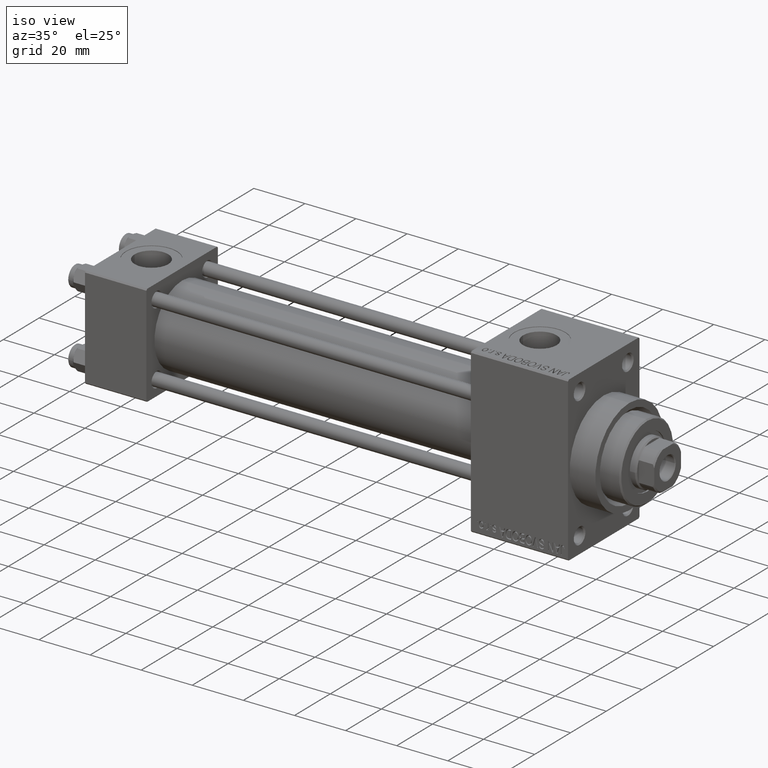
[diagram: clean part render]
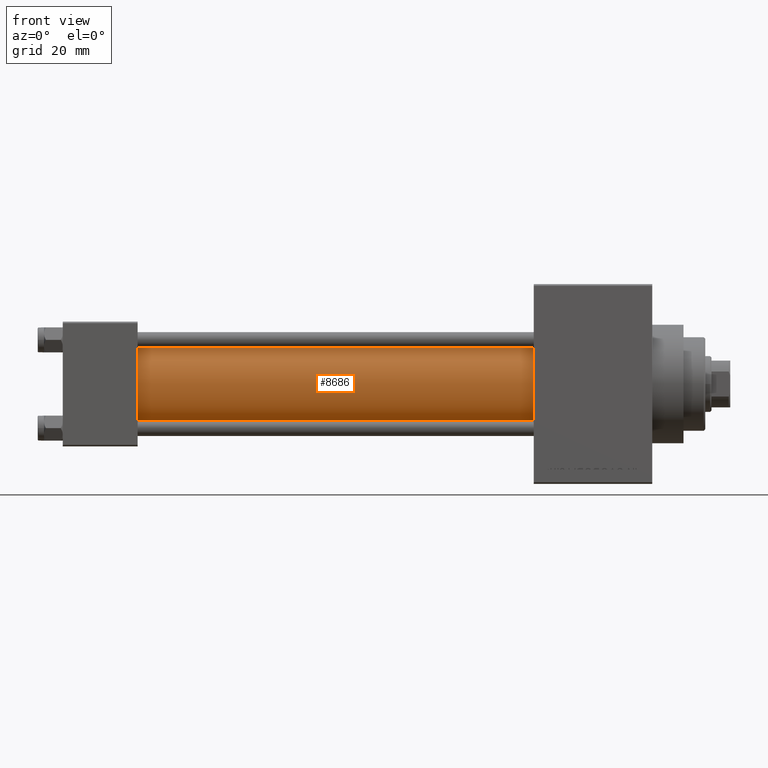
[diagram: tour spotlight — one face highlighted and labeled with its STEP entity id]
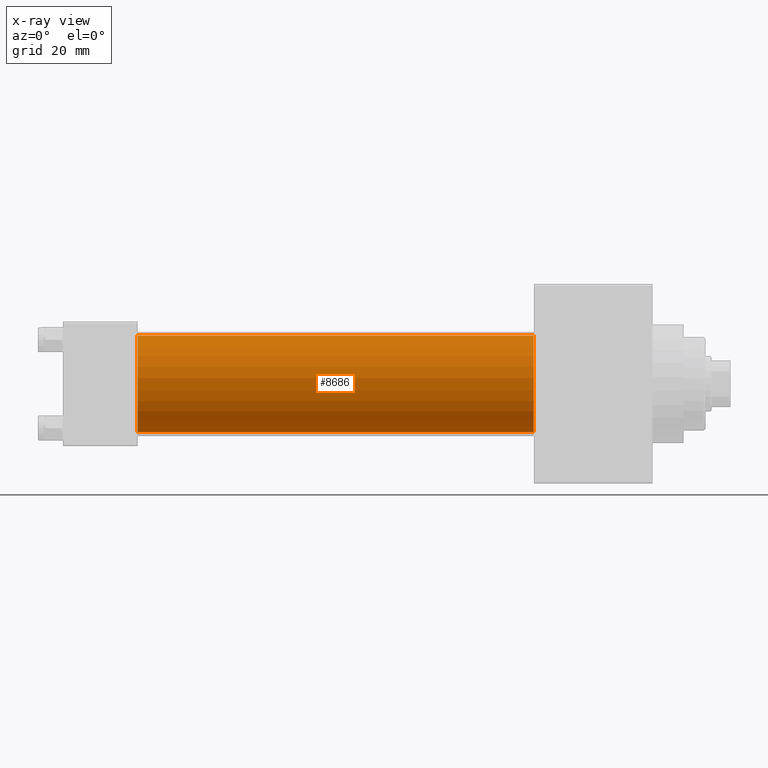
[diagram: x-ray of the same camera — body ghosted, this tour face saturated]
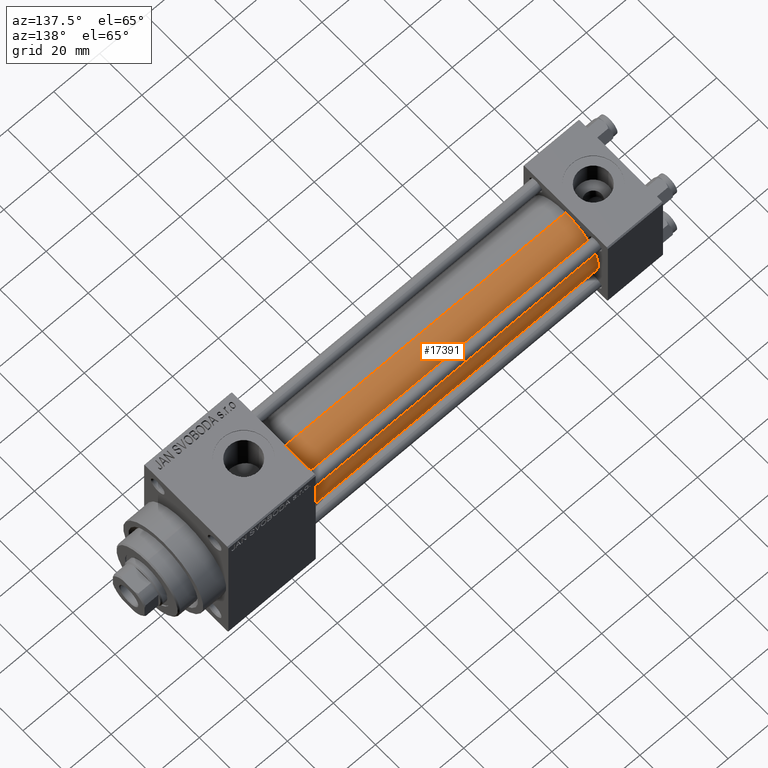
[diagram: tour spotlight — one face highlighted and labeled with its STEP entity id]
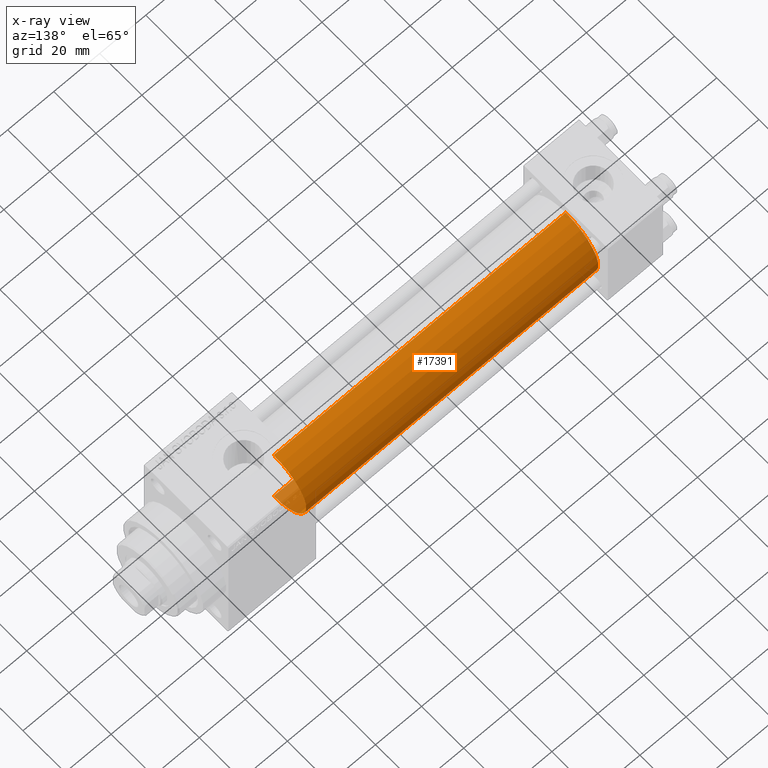
[diagram: x-ray of the same camera — body ghosted, this tour face saturated]
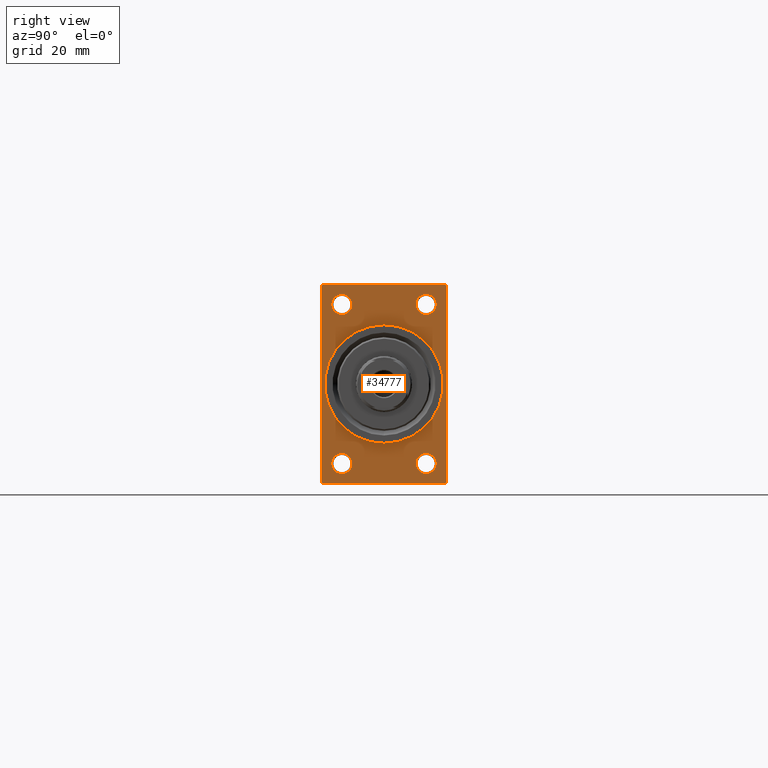
[diagram: tour spotlight — one face highlighted and labeled with its STEP entity id]
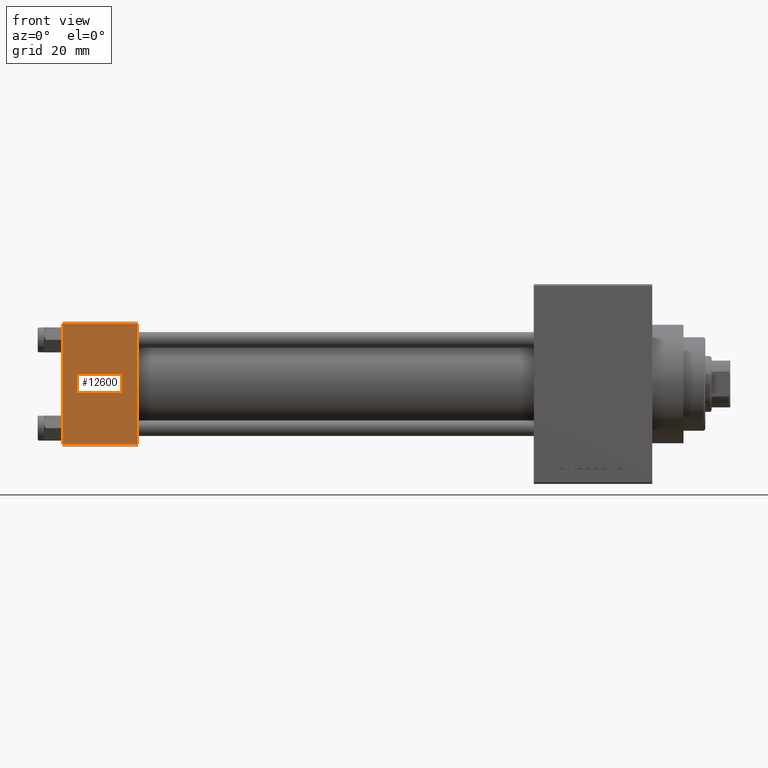
[diagram: tour spotlight — one face highlighted and labeled with its STEP entity id]
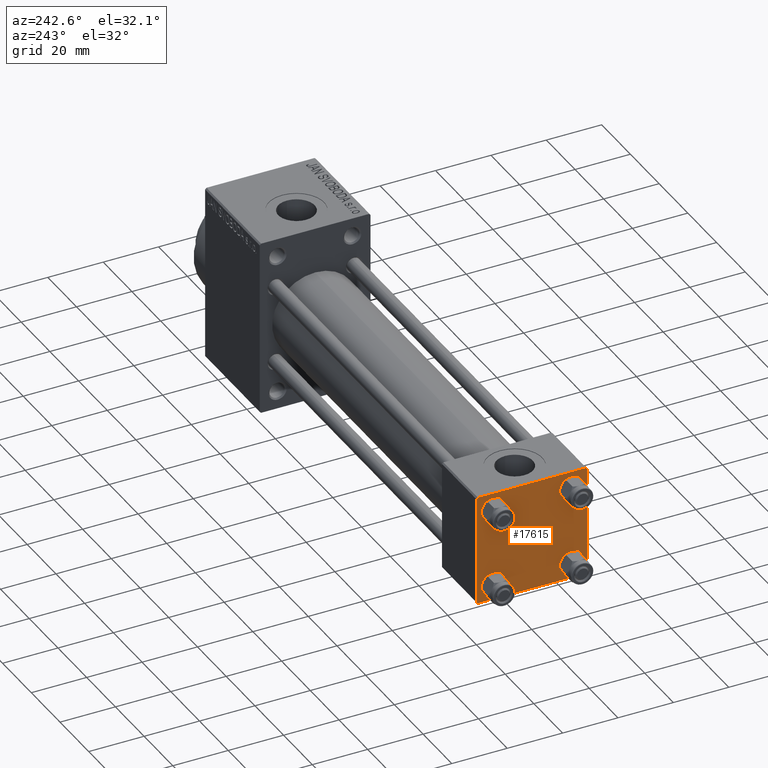
[diagram: tour spotlight — one face highlighted and labeled with its STEP entity id]
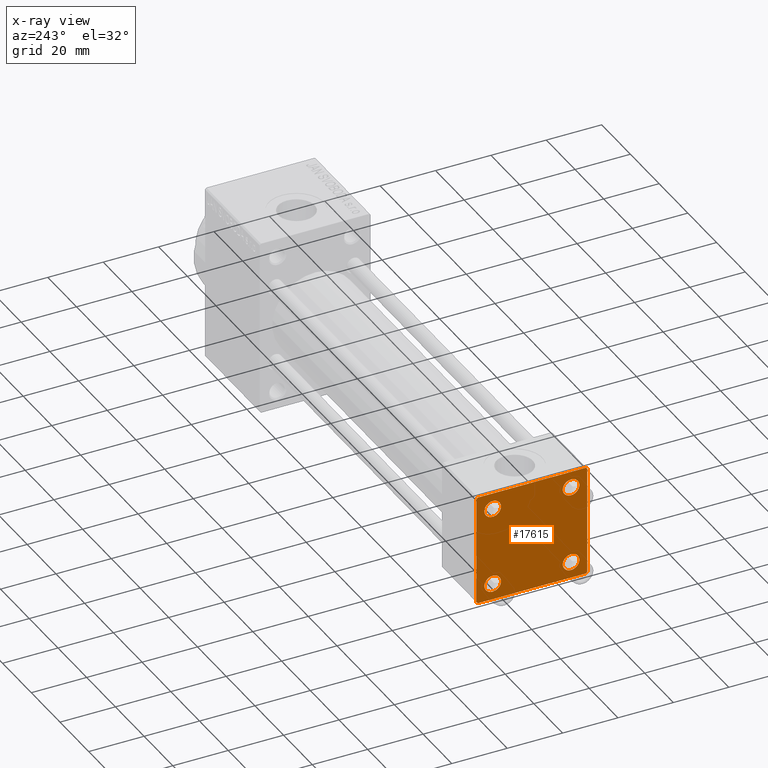
[diagram: x-ray of the same camera — body ghosted, this tour face saturated]
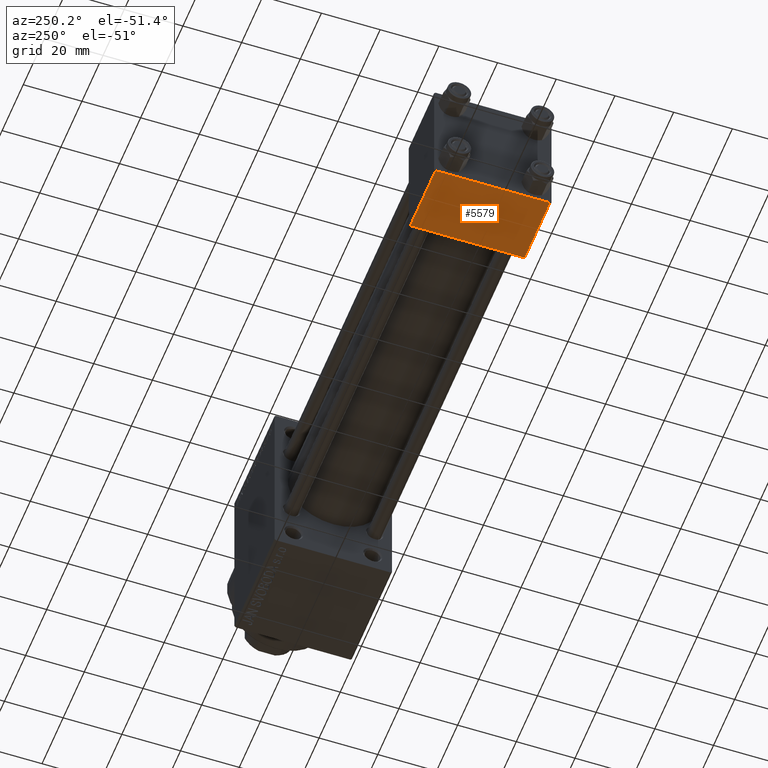
[diagram: tour spotlight — one face highlighted and labeled with its STEP entity id]
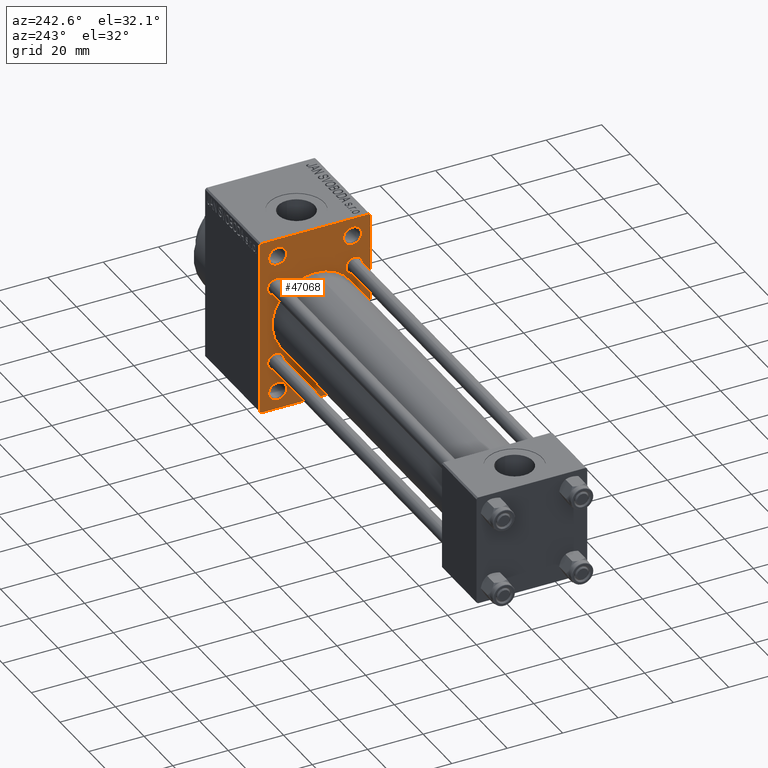
[diagram: tour spotlight — one face highlighted and labeled with its STEP entity id]
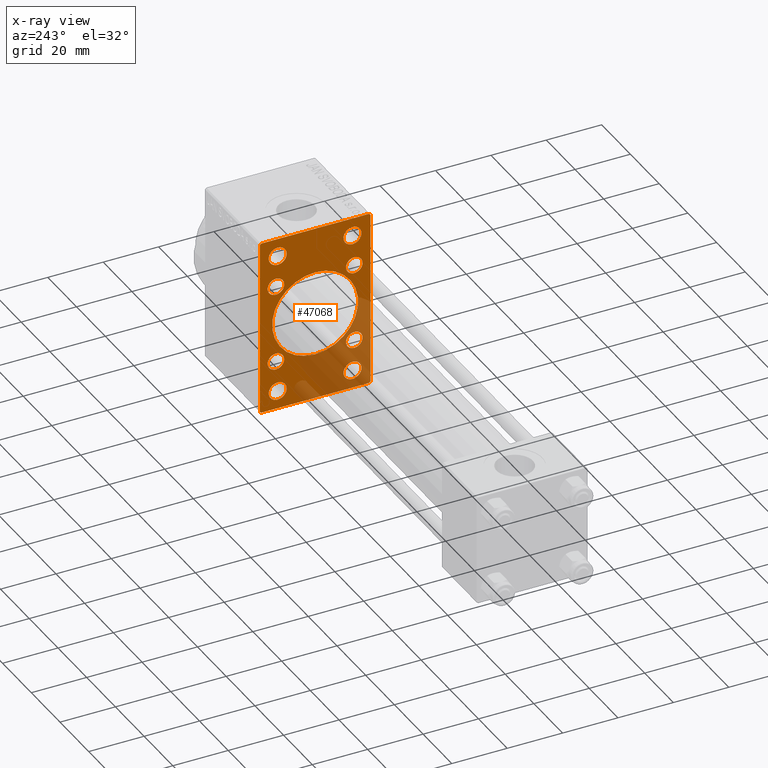
[diagram: x-ray of the same camera — body ghosted, this tour face saturated]
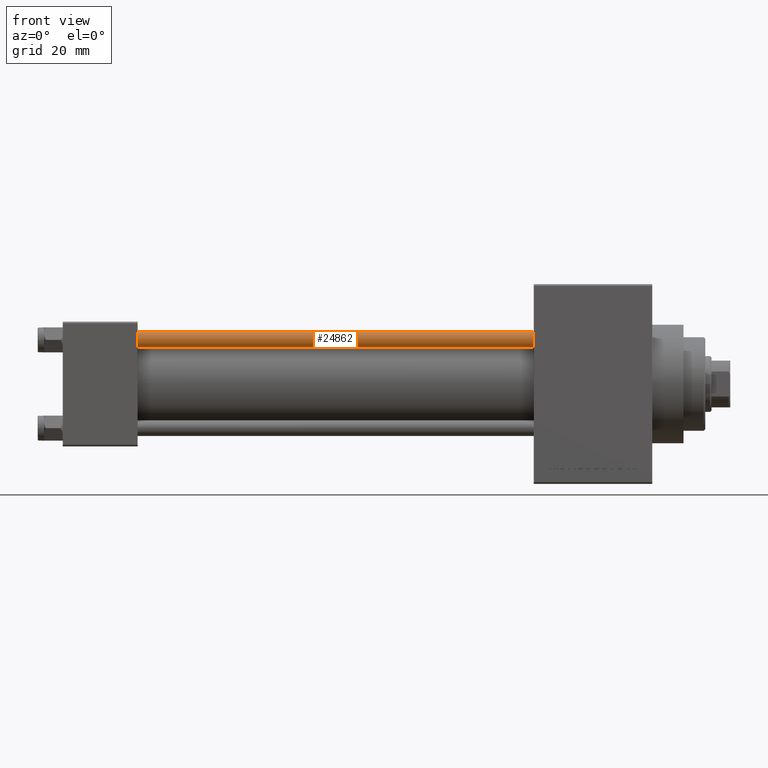
[diagram: tour spotlight — one face highlighted and labeled with its STEP entity id]
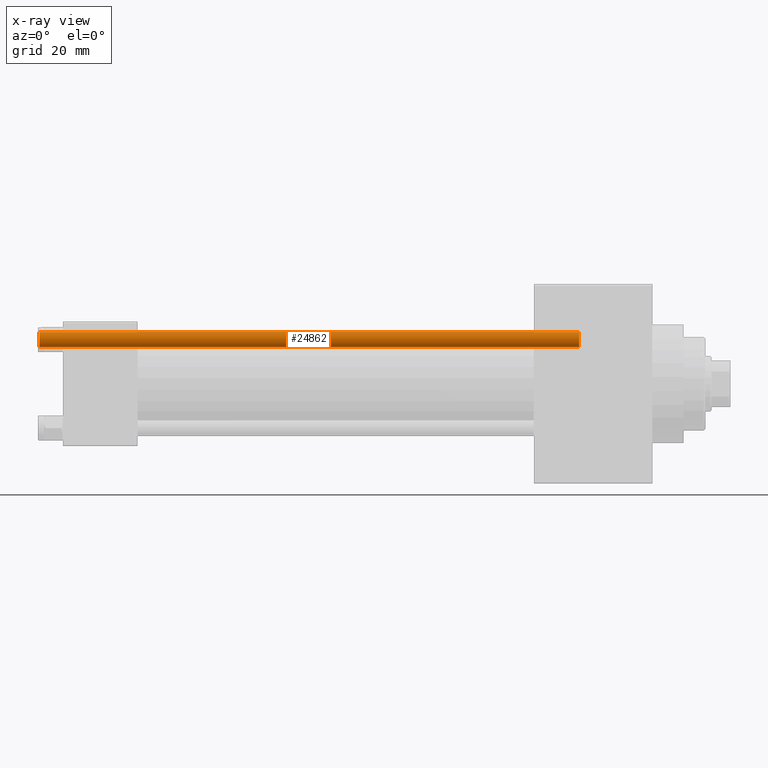
[diagram: x-ray of the same camera — body ghosted, this tour face saturated]
A machine part: a face-by-face anatomy tour. The part has 1101 B-rep faces; the first image is the clean iso view, then the 8 largest visible faces are spotlighted one at a time (largest first), each with its STEP entity span.

Face 1 — front view, entity #8686. An x-ray twin of the same camera follows (body ghosted, this face saturated) — the face is partly hidden behind the body. In plain terms, the highlighted cylindrical surface (partial cylindrical patch) has radius 15.5 mm, axis along (-1, -0, -0).
Definition (entity closure, byte-faithful):
#3162 = LINE ( 'NONE', #11014, #35859 ) ;
#3396 = DIRECTION ( 'NONE',  ( -1.000000000000000000, -0.000000000000000000, -0.000000000000000000 ) ) ;
#6019 = CARTESIAN_POINT ( 'NONE',  ( 151.0000000000000000, -2.602085213965210642E-15, 0.000000000000000000 ) ) ;
#8637 = EDGE_CURVE ( 'NONE', #29104, #18291, #37145, .T. ) ;
#8686 = ADVANCED_FACE ( 'NONE', ( #9310 ), #27652, .T. ) ;
#9310 = FACE_OUTER_BOUND ( 'NONE', #31539, .T. ) ;
#10010 = DIRECTION ( 'NONE',  ( 0.000000000000000000, 0.000000000000000000, 1.000000000000000000 ) ) ;
#10568 = DIRECTION ( 'NONE',  ( -1.000000000000000000, -0.000000000000000000, -0.000000000000000000 ) ) ;
#11014 = CARTESIAN_POINT ( 'NONE',  ( 151.0000000000000000, -2.602085213965210642E-15, 15.50000000000000000 ) ) ;
#12169 = DIRECTION ( 'NONE',  ( 0.000000000000000000, 0.000000000000000000, 1.000000000000000000 ) ) ;
#13578 = EDGE_CURVE ( 'NONE', #44659, #44647, #13605, .T. ) ;
#13605 = CIRCLE ( 'NONE', #25778, 15.50000000000000000 ) ;
#15507 = DIRECTION ( 'NONE',  ( 1.000000000000000000, 0.000000000000000000, 0.000000000000000000 ) ) ;
#16286 = CARTESIAN_POINT ( 'NONE',  ( 23.99999999999999289, -7.038826752868131828E-16, -15.50000000000000000 ) ) ;
#16994 = CARTESIAN_POINT ( 'NONE',  ( 23.99999999999999289, -2.602085213965210642E-15, 15.50000000000000000 ) ) ;
#17012 = ORIENTED_EDGE ( 'NONE', *, *, #18371, .T. ) ;
#18291 = VERTEX_POINT ( 'NONE', #16286 ) ;
#18371 = EDGE_CURVE ( 'NONE', #44659, #29104, #3162, .T. ) ;
#18881 = AXIS2_PLACEMENT_3D ( 'NONE', #44796, #15507, #12169 ) ;
#20721 = CARTESIAN_POINT ( 'NONE',  ( 151.0000000000000000, -2.602085213965210642E-15, 0.000000000000000000 ) ) ;
#22431 = CARTESIAN_POINT ( 'NONE',  ( 151.0000000000000000, -2.602085213965210642E-15, 15.50000000000000000 ) ) ;
#24588 = DIRECTION ( 'NONE',  ( 0.000000000000000000, 0.000000000000000000, -1.000000000000000000 ) ) ;
#24814 = DIRECTION ( 'NONE',  ( 1.000000000000000000, 0.000000000000000000, 0.000000000000000000 ) ) ;
#25778 = AXIS2_PLACEMENT_3D ( 'NONE', #6019, #24814, #24588 ) ;
#27652 = CYLINDRICAL_SURFACE ( 'NONE', #39423, 15.50000000000000000 ) ;
#29104 = VERTEX_POINT ( 'NONE', #16994 ) ;
#31539 = EDGE_LOOP ( 'NONE', ( #32538, #42780, #17012, #43672 ) ) ;
#32538 = ORIENTED_EDGE ( 'NONE', *, *, #33908, .F. ) ;
#33908 = EDGE_CURVE ( 'NONE', #44647, #18291, #43186, .T. ) ;
#35859 = VECTOR ( 'NONE', #3396, 1000.000000000000000 ) ;
#37145 = CIRCLE ( 'NONE', #18881, 15.50000000000000000 ) ;
#39423 = AXIS2_PLACEMENT_3D ( 'NONE', #20721, #41692, #10010 ) ;
#40071 = CARTESIAN_POINT ( 'NONE',  ( 151.0000000000000000, -7.038826752868131828E-16, -15.50000000000000000 ) ) ;
#41600 = VECTOR ( 'NONE', #10568, 1000.000000000000000 ) ;
#41692 = DIRECTION ( 'NONE',  ( -1.000000000000000000, -0.000000000000000000, -0.000000000000000000 ) ) ;
#42780 = ORIENTED_EDGE ( 'NONE', *, *, #13578, .F. ) ;
#43186 = LINE ( 'NONE', #46760, #41600 ) ;
#43672 = ORIENTED_EDGE ( 'NONE', *, *, #8637, .T. ) ;
#44647 = VERTEX_POINT ( 'NONE', #40071 ) ;
#44659 = VERTEX_POINT ( 'NONE', #22431 ) ;
#44796 = CARTESIAN_POINT ( 'NONE',  ( 23.99999999999999289, -2.602085213965210642E-15, 0.000000000000000000 ) ) ;
#46760 = CARTESIAN_POINT ( 'NONE',  ( 151.0000000000000000, -7.038826752868131828E-16, -15.50000000000000000 ) ) ;

Face 2 — auxiliary view, entity #17391. An x-ray twin of the same camera follows (body ghosted, this face saturated) — the face is partly hidden behind the body. In plain terms, the highlighted cylindrical surface (partial cylindrical patch) has radius 15.5 mm, axis along (-1, -0, -0).
Definition (entity closure, byte-faithful):
#474 = ORIENTED_EDGE ( 'NONE', *, *, #14107, .F. ) ;
#3162 = LINE ( 'NONE', #11014, #35859 ) ;
#3302 = CIRCLE ( 'NONE', #39841, 15.50000000000000000 ) ;
#3396 = DIRECTION ( 'NONE',  ( -1.000000000000000000, -0.000000000000000000, -0.000000000000000000 ) ) ;
#7561 = DIRECTION ( 'NONE',  ( -1.000000000000000000, -0.000000000000000000, -0.000000000000000000 ) ) ;
#10568 = DIRECTION ( 'NONE',  ( -1.000000000000000000, -0.000000000000000000, -0.000000000000000000 ) ) ;
#11014 = CARTESIAN_POINT ( 'NONE',  ( 151.0000000000000000, -2.602085213965210642E-15, 15.50000000000000000 ) ) ;
#14107 = EDGE_CURVE ( 'NONE', #44647, #44659, #18215, .T. ) ;
#16286 = CARTESIAN_POINT ( 'NONE',  ( 23.99999999999999289, -7.038826752868131828E-16, -15.50000000000000000 ) ) ;
#16994 = CARTESIAN_POINT ( 'NONE',  ( 23.99999999999999289, -2.602085213965210642E-15, 15.50000000000000000 ) ) ;
#17391 = ADVANCED_FACE ( 'NONE', ( #22100 ), #33044, .T. ) ;
#18215 = CIRCLE ( 'NONE', #34187, 15.50000000000000000 ) ;
#18291 = VERTEX_POINT ( 'NONE', #16286 ) ;
#18371 = EDGE_CURVE ( 'NONE', #44659, #29104, #3162, .T. ) ;
#18825 = CARTESIAN_POINT ( 'NONE',  ( 23.99999999999999289, -2.602085213965210642E-15, 0.000000000000000000 ) ) ;
#21422 = DIRECTION ( 'NONE',  ( 1.000000000000000000, 0.000000000000000000, 0.000000000000000000 ) ) ;
#22100 = FACE_OUTER_BOUND ( 'NONE', #26807, .T. ) ;
#22431 = CARTESIAN_POINT ( 'NONE',  ( 151.0000000000000000, -2.602085213965210642E-15, 15.50000000000000000 ) ) ;
#24358 = EDGE_CURVE ( 'NONE', #18291, #29104, #3302, .T. ) ;
#26807 = EDGE_LOOP ( 'NONE', ( #474, #28560, #30799, #32044 ) ) ;
#28560 = ORIENTED_EDGE ( 'NONE', *, *, #33908, .T. ) ;
#29104 = VERTEX_POINT ( 'NONE', #16994 ) ;
#30799 = ORIENTED_EDGE ( 'NONE', *, *, #24358, .T. ) ;
#32044 = ORIENTED_EDGE ( 'NONE', *, *, #18371, .F. ) ;
#33044 = CYLINDRICAL_SURFACE ( 'NONE', #37321, 15.50000000000000000 ) ;
#33349 = DIRECTION ( 'NONE',  ( 0.000000000000000000, 0.000000000000000000, 1.000000000000000000 ) ) ;
#33908 = EDGE_CURVE ( 'NONE', #44647, #18291, #43186, .T. ) ;
#34187 = AXIS2_PLACEMENT_3D ( 'NONE', #43089, #21422, #35962 ) ;
#35859 = VECTOR ( 'NONE', #3396, 1000.000000000000000 ) ;
#35962 = DIRECTION ( 'NONE',  ( 0.000000000000000000, 0.000000000000000000, -1.000000000000000000 ) ) ;
#37321 = AXIS2_PLACEMENT_3D ( 'NONE', #43759, #7561, #40443 ) ;
#39841 = AXIS2_PLACEMENT_3D ( 'NONE', #18825, #44531, #33349 ) ;
#40071 = CARTESIAN_POINT ( 'NONE',  ( 151.0000000000000000, -7.038826752868131828E-16, -15.50000000000000000 ) ) ;
#40443 = DIRECTION ( 'NONE',  ( 0.000000000000000000, 0.000000000000000000, 1.000000000000000000 ) ) ;
#41600 = VECTOR ( 'NONE', #10568, 1000.000000000000000 ) ;
#43089 = CARTESIAN_POINT ( 'NONE',  ( 151.0000000000000000, -2.602085213965210642E-15, 0.000000000000000000 ) ) ;
#43186 = LINE ( 'NONE', #46760, #41600 ) ;
#43759 = CARTESIAN_POINT ( 'NONE',  ( 151.0000000000000000, -2.602085213965210642E-15, 0.000000000000000000 ) ) ;
#44531 = DIRECTION ( 'NONE',  ( 1.000000000000000000, 0.000000000000000000, 0.000000000000000000 ) ) ;
#44647 = VERTEX_POINT ( 'NONE', #40071 ) ;
#44659 = VERTEX_POINT ( 'NONE', #22431 ) ;
#46760 = CARTESIAN_POINT ( 'NONE',  ( 151.0000000000000000, -7.038826752868131828E-16, -15.50000000000000000 ) ) ;

Face 3 — right view, entity #34777. In plain terms, the highlighted planar face has unit normal (-1, 0, 0).
Definition (entity closure, byte-faithful):
#560 = DIRECTION ( 'NONE',  ( -1.000000000000000000, -0.000000000000000000, -0.000000000000000000 ) ) ;
#789 = VECTOR ( 'NONE', #13674, 1000.000000000000000 ) ;
#810 = CARTESIAN_POINT ( 'NONE',  ( 189.0000000000000000, 13.49999999999999822, 28.74999999999997868 ) ) ;
#1007 = VERTEX_POINT ( 'NONE', #41380 ) ;
#2309 = LINE ( 'NONE', #8103, #23500 ) ;
#2676 = CARTESIAN_POINT ( 'NONE',  ( 189.0000000000000000, 20.00000000000000000, -32.00000000000000000 ) ) ;
#2868 = EDGE_CURVE ( 'NONE', #41545, #29600, #36228, .T. ) ;
#2875 = VERTEX_POINT ( 'NONE', #22402 ) ;
#2966 = DIRECTION ( 'NONE',  ( 0.000000000000000000, 0.000000000000000000, 1.000000000000000000 ) ) ;
#3590 = DIRECTION ( 'NONE',  ( 0.000000000000000000, -0.7071067811865474617, 0.7071067811865474617 ) ) ;
#4328 = DIRECTION ( 'NONE',  ( -1.000000000000000000, -0.000000000000000000, -0.000000000000000000 ) ) ;
#4379 = VERTEX_POINT ( 'NONE', #8414 ) ;
#4634 = DIRECTION ( 'NONE',  ( 0.000000000000000000, 0.000000000000000000, -1.000000000000000000 ) ) ;
#4669 = EDGE_LOOP ( 'NONE', ( #15654, #44233 ) ) ;
#4863 = LINE ( 'NONE', #22724, #16166 ) ;
#5048 = VECTOR ( 'NONE', #3590, 1000.000000000000114 ) ;
#5838 = DIRECTION ( 'NONE',  ( -1.000000000000000000, 0.000000000000000000, -0.000000000000000000 ) ) ;
#6366 = LINE ( 'NONE', #13983, #8339 ) ;
#6561 = DIRECTION ( 'NONE',  ( 0.000000000000000000, -1.000000000000000000, -1.734723475976807094E-16 ) ) ;
#6915 = AXIS2_PLACEMENT_3D ( 'NONE', #17504, #39179, #2966 ) ;
#7627 = DIRECTION ( 'NONE',  ( -1.000000000000000000, -0.000000000000000000, -0.000000000000000000 ) ) ;
#7741 = DIRECTION ( 'NONE',  ( 1.000000000000000000, 0.000000000000000000, 0.000000000000000000 ) ) ;
#7867 = DIRECTION ( 'NONE',  ( 0.000000000000000000, 0.000000000000000000, -1.000000000000000000 ) ) ;
#8037 = CARTESIAN_POINT ( 'NONE',  ( 189.0000000000000000, 19.50000000000000000, 32.00000000000000000 ) ) ;
#8079 = CARTESIAN_POINT ( 'NONE',  ( 189.0000000000000000, 20.00000000000000000, -31.50000000000000000 ) ) ;
#8103 = CARTESIAN_POINT ( 'NONE',  ( 189.0000000000000000, -20.00000000000000000, 31.99999999999999289 ) ) ;
#8106 = AXIS2_PLACEMENT_3D ( 'NONE', #35135, #5838, #31561 ) ;
#8266 = CARTESIAN_POINT ( 'NONE',  ( 189.0000000000000000, 13.49999999999999822, 25.50000000000000355 ) ) ;
#8339 = VECTOR ( 'NONE', #28514, 1000.000000000000114 ) ;
#8362 = DIRECTION ( 'NONE',  ( 0.000000000000000000, 0.000000000000000000, 1.000000000000000000 ) ) ;
#8414 = CARTESIAN_POINT ( 'NONE',  ( 189.0000000000000000, -19.50000000000000000, 31.99999999999999289 ) ) ;
#8471 = CARTESIAN_POINT ( 'NONE',  ( 189.0000000000000000, -20.00000000000000000, 31.49999999999999289 ) ) ;
#8472 = CARTESIAN_POINT ( 'NONE',  ( 189.0000000000000000, 13.49999999999999822, -22.25000000000002487 ) ) ;
#8959 = DIRECTION ( 'NONE',  ( 0.000000000000000000, 0.000000000000000000, 1.000000000000000000 ) ) ;
#9338 = ORIENTED_EDGE ( 'NONE', *, *, #44228, .T. ) ;
#9453 = ORIENTED_EDGE ( 'NONE', *, *, #13635, .F. ) ;
#9473 = VERTEX_POINT ( 'NONE', #10322 ) ;
#9559 = EDGE_CURVE ( 'NONE', #30383, #45163, #43251, .T. ) ;
#9936 = EDGE_CURVE ( 'NONE', #42046, #38405, #2309, .T. ) ;
#10154 = EDGE_LOOP ( 'NONE', ( #17737, #21921, #9453, #22285, #41493, #30130, #13692, #9338 ) ) ;
#10293 = LINE ( 'NONE', #2676, #37917 ) ;
#10322 = CARTESIAN_POINT ( 'NONE',  ( 189.0000000000000000, -19.50000000000002842, -32.00000000000000000 ) ) ;
#10345 = PLANE ( 'NONE',  #8106 ) ;
#10385 = EDGE_LOOP ( 'NONE', ( #30157, #44524 ) ) ;
#11139 = EDGE_LOOP ( 'NONE', ( #18530, #19806 ) ) ;
#11477 = CARTESIAN_POINT ( 'NONE',  ( 189.0000000000000000, -13.50000000000000533, -25.49999999999999645 ) ) ;
#11478 = AXIS2_PLACEMENT_3D ( 'NONE', #34211, #41589, #8959 ) ;
#11726 = AXIS2_PLACEMENT_3D ( 'NONE', #33990, #27313, #37797 ) ;
#11938 = DIRECTION ( 'NONE',  ( 0.000000000000000000, 0.000000000000000000, 1.000000000000000000 ) ) ;
#12035 = EDGE_LOOP ( 'NONE', ( #44431, #24232 ) ) ;
#12079 = VERTEX_POINT ( 'NONE', #24689 ) ;
#12570 = CARTESIAN_POINT ( 'NONE',  ( 189.0000000000000000, 19.50000000000000000, -32.00000000000000000 ) ) ;
#12579 = DIRECTION ( 'NONE',  ( -0.000000000000000000, 0.7071067811865474617, 0.7071067811865474617 ) ) ;
#12620 = CIRCLE ( 'NONE', #37727, 3.249999999999975131 ) ;
#12755 = VECTOR ( 'NONE', #12579, 1000.000000000000114 ) ;
#13635 = EDGE_CURVE ( 'NONE', #41119, #9473, #10293, .T. ) ;
#13674 = DIRECTION ( 'NONE',  ( 0.000000000000000000, 0.7071067811865328068, -0.7071067811865622277 ) ) ;
#13692 = ORIENTED_EDGE ( 'NONE', *, *, #22841, .T. ) ;
#13722 = LINE ( 'NONE', #43003, #25344 ) ;
#13922 = FACE_OUTER_BOUND ( 'NONE', #10154, .T. ) ;
#13966 = VERTEX_POINT ( 'NONE', #42392 ) ;
#13983 = CARTESIAN_POINT ( 'NONE',  ( 189.0000000000000000, -20.00000000000000000, 31.49999999999999289 ) ) ;
#14780 = CARTESIAN_POINT ( 'NONE',  ( 189.0000000000000000, 19.50000000000000000, 32.00000000000000000 ) ) ;
#14832 = CARTESIAN_POINT ( 'NONE',  ( 189.0000000000000000, 13.49999999999999822, -25.50000000000000000 ) ) ;
#15085 = DIRECTION ( 'NONE',  ( 0.000000000000000000, 0.000000000000000000, 1.000000000000000000 ) ) ;
#15267 = CARTESIAN_POINT ( 'NONE',  ( 189.0000000000000000, 13.49999999999999822, -25.50000000000000000 ) ) ;
#15622 = EDGE_LOOP ( 'NONE', ( #26848, #28717 ) ) ;
#15642 = DIRECTION ( 'NONE',  ( 0.000000000000000000, 0.000000000000000000, 1.000000000000000000 ) ) ;
#15654 = ORIENTED_EDGE ( 'NONE', *, *, #17881, .T. ) ;
#15805 = CARTESIAN_POINT ( 'NONE',  ( 189.0000000000000000, 20.00000000000000000, 31.50000000000000000 ) ) ;
#15923 = LINE ( 'NONE', #8079, #12755 ) ;
#16166 = VECTOR ( 'NONE', #4634, 1000.000000000000000 ) ;
#17242 = LINE ( 'NONE', #31777, #789 ) ;
#17504 = CARTESIAN_POINT ( 'NONE',  ( 189.0000000000000000, -13.50000000000000533, -25.49999999999999645 ) ) ;
#17737 = ORIENTED_EDGE ( 'NONE', *, *, #9936, .T. ) ;
#17881 = EDGE_CURVE ( 'NONE', #1007, #24730, #18308, .T. ) ;
#18140 = EDGE_CURVE ( 'NONE', #31944, #2875, #33512, .T. ) ;
#18308 = CIRCLE ( 'NONE', #11478, 3.249999999999975131 ) ;
#18465 = CARTESIAN_POINT ( 'NONE',  ( 189.0000000000000000, -20.00000000000000000, -31.50000000000000711 ) ) ;
#18530 = ORIENTED_EDGE ( 'NONE', *, *, #47029, .T. ) ;
#19403 = VERTEX_POINT ( 'NONE', #30005 ) ;
#19806 = ORIENTED_EDGE ( 'NONE', *, *, #41764, .T. ) ;
#21805 = EDGE_CURVE ( 'NONE', #41545, #13966, #4863, .T. ) ;
#21921 = ORIENTED_EDGE ( 'NONE', *, *, #45501, .T. ) ;
#22122 = CARTESIAN_POINT ( 'NONE',  ( 189.0000000000000000, -13.50000000000000178, 28.74999999999997868 ) ) ;
#22268 = DIRECTION ( 'NONE',  ( 0.000000000000000000, 0.000000000000000000, -1.000000000000000000 ) ) ;
#22285 = ORIENTED_EDGE ( 'NONE', *, *, #36821, .T. ) ;
#22402 = CARTESIAN_POINT ( 'NONE',  ( 189.0000000000000000, 0.000000000000000000, 19.00000000000000000 ) ) ;
#22647 = DIRECTION ( 'NONE',  ( -1.000000000000000000, -0.000000000000000000, -0.000000000000000000 ) ) ;
#22724 = CARTESIAN_POINT ( 'NONE',  ( 189.0000000000000000, 20.00000000000000000, 32.00000000000000000 ) ) ;
#22841 = EDGE_CURVE ( 'NONE', #29600, #4379, #13722, .T. ) ;
#23500 = VECTOR ( 'NONE', #7867, 1000.000000000000000 ) ;
#24232 = ORIENTED_EDGE ( 'NONE', *, *, #43640, .T. ) ;
#24321 = CARTESIAN_POINT ( 'NONE',  ( 189.0000000000000000, 13.49999999999999822, -28.74999999999997513 ) ) ;
#24689 = CARTESIAN_POINT ( 'NONE',  ( 189.0000000000000000, -13.50000000000000533, -28.74999999999997158 ) ) ;
#24730 = VERTEX_POINT ( 'NONE', #22122 ) ;
#25008 = AXIS2_PLACEMENT_3D ( 'NONE', #14832, #33171, #40094 ) ;
#25143 = AXIS2_PLACEMENT_3D ( 'NONE', #45098, #7741, #22268 ) ;
#25257 = DIRECTION ( 'NONE',  ( 0.000000000000000000, 0.000000000000000000, 1.000000000000000000 ) ) ;
#25344 = VECTOR ( 'NONE', #6561, 1000.000000000000000 ) ;
#26308 = AXIS2_PLACEMENT_3D ( 'NONE', #8266, #29469, #15642 ) ;
#26848 = ORIENTED_EDGE ( 'NONE', *, *, #40658, .T. ) ;
#27313 = DIRECTION ( 'NONE',  ( 1.000000000000000000, 0.000000000000000000, 0.000000000000000000 ) ) ;
#27388 = CIRCLE ( 'NONE', #30420, 3.249999999999975131 ) ;
#27626 = VERTEX_POINT ( 'NONE', #810 ) ;
#28458 = FACE_BOUND ( 'NONE', #10385, .T. ) ;
#28514 = DIRECTION ( 'NONE',  ( -0.000000000000000000, -0.7071067811865474617, -0.7071067811865474617 ) ) ;
#28717 = ORIENTED_EDGE ( 'NONE', *, *, #32182, .T. ) ;
#29469 = DIRECTION ( 'NONE',  ( -1.000000000000000000, -0.000000000000000000, -0.000000000000000000 ) ) ;
#29600 = VERTEX_POINT ( 'NONE', #8037 ) ;
#29716 = EDGE_CURVE ( 'NONE', #2875, #31944, #37577, .T. ) ;
#29724 = CIRCLE ( 'NONE', #6915, 3.249999999999975131 ) ;
#30005 = CARTESIAN_POINT ( 'NONE',  ( 189.0000000000000000, 13.49999999999999822, 22.25000000000002842 ) ) ;
#30040 = CARTESIAN_POINT ( 'NONE',  ( 189.0000000000000000, -13.50000000000000533, -22.25000000000002132 ) ) ;
#30130 = ORIENTED_EDGE ( 'NONE', *, *, #2868, .T. ) ;
#30157 = ORIENTED_EDGE ( 'NONE', *, *, #29716, .F. ) ;
#30331 = CARTESIAN_POINT ( 'NONE',  ( 189.0000000000000000, 13.49999999999999822, 25.50000000000000355 ) ) ;
#30383 = VERTEX_POINT ( 'NONE', #24321 ) ;
#30420 = AXIS2_PLACEMENT_3D ( 'NONE', #11477, #4328, #11938 ) ;
#31561 = DIRECTION ( 'NONE',  ( -0.000000000000000000, 0.000000000000000000, 1.000000000000000000 ) ) ;
#31777 = CARTESIAN_POINT ( 'NONE',  ( 189.0000000000000000, -19.50000000000002842, -32.00000000000000000 ) ) ;
#31944 = VERTEX_POINT ( 'NONE', #39964 ) ;
#32182 = EDGE_CURVE ( 'NONE', #27626, #19403, #40014, .T. ) ;
#32510 = EDGE_CURVE ( 'NONE', #24730, #1007, #12620, .T. ) ;
#33171 = DIRECTION ( 'NONE',  ( -1.000000000000000000, -0.000000000000000000, -0.000000000000000000 ) ) ;
#33512 = CIRCLE ( 'NONE', #25143, 19.00000000000000000 ) ;
#33990 = CARTESIAN_POINT ( 'NONE',  ( 189.0000000000000000, 0.000000000000000000, 0.000000000000000000 ) ) ;
#34211 = CARTESIAN_POINT ( 'NONE',  ( 189.0000000000000000, -13.50000000000000178, 25.50000000000000355 ) ) ;
#34777 = ADVANCED_FACE ( 'NONE', ( #35840, #38467, #46771, #46539, #28458, #13922 ), #10345, .F. ) ;
#35135 = CARTESIAN_POINT ( 'NONE',  ( 189.0000000000000000, 0.000000000000000000, 0.000000000000000000 ) ) ;
#35840 = FACE_BOUND ( 'NONE', #4669, .T. ) ;
#36228 = LINE ( 'NONE', #14780, #5048 ) ;
#36576 = VERTEX_POINT ( 'NONE', #30040 ) ;
#36821 = EDGE_CURVE ( 'NONE', #41119, #13966, #15923, .T. ) ;
#37577 = CIRCLE ( 'NONE', #11726, 19.00000000000000000 ) ;
#37727 = AXIS2_PLACEMENT_3D ( 'NONE', #43819, #7627, #25257 ) ;
#37797 = DIRECTION ( 'NONE',  ( 0.000000000000000000, 0.000000000000000000, -1.000000000000000000 ) ) ;
#37917 = VECTOR ( 'NONE', #42689, 1000.000000000000000 ) ;
#37993 = CIRCLE ( 'NONE', #44064, 3.249999999999975131 ) ;
#38405 = VERTEX_POINT ( 'NONE', #18465 ) ;
#38467 = FACE_BOUND ( 'NONE', #11139, .T. ) ;
#39179 = DIRECTION ( 'NONE',  ( -1.000000000000000000, -0.000000000000000000, -0.000000000000000000 ) ) ;
#39964 = CARTESIAN_POINT ( 'NONE',  ( 189.0000000000000000, 2.326828918379970970E-15, -19.00000000000000000 ) ) ;
#40014 = CIRCLE ( 'NONE', #26308, 3.249999999999975131 ) ;
#40094 = DIRECTION ( 'NONE',  ( 0.000000000000000000, 0.000000000000000000, 1.000000000000000000 ) ) ;
#40272 = AXIS2_PLACEMENT_3D ( 'NONE', #15267, #22647, #8362 ) ;
#40658 = EDGE_CURVE ( 'NONE', #19403, #27626, #37993, .T. ) ;
#41119 = VERTEX_POINT ( 'NONE', #12570 ) ;
#41380 = CARTESIAN_POINT ( 'NONE',  ( 189.0000000000000000, -13.50000000000000178, 22.25000000000002842 ) ) ;
#41493 = ORIENTED_EDGE ( 'NONE', *, *, #21805, .F. ) ;
#41545 = VERTEX_POINT ( 'NONE', #15805 ) ;
#41589 = DIRECTION ( 'NONE',  ( -1.000000000000000000, -0.000000000000000000, -0.000000000000000000 ) ) ;
#41764 = EDGE_CURVE ( 'NONE', #36576, #12079, #27388, .T. ) ;
#42046 = VERTEX_POINT ( 'NONE', #8471 ) ;
#42392 = CARTESIAN_POINT ( 'NONE',  ( 189.0000000000000000, 20.00000000000000000, -31.50000000000000000 ) ) ;
#42689 = DIRECTION ( 'NONE',  ( 0.000000000000000000, -1.000000000000000000, 0.000000000000000000 ) ) ;
#43003 = CARTESIAN_POINT ( 'NONE',  ( 189.0000000000000000, 20.00000000000000000, 32.00000000000000000 ) ) ;
#43251 = CIRCLE ( 'NONE', #25008, 3.249999999999975131 ) ;
#43640 = EDGE_CURVE ( 'NONE', #45163, #30383, #47082, .T. ) ;
#43819 = CARTESIAN_POINT ( 'NONE',  ( 189.0000000000000000, -13.50000000000000178, 25.50000000000000355 ) ) ;
#44064 = AXIS2_PLACEMENT_3D ( 'NONE', #30331, #560, #15085 ) ;
#44228 = EDGE_CURVE ( 'NONE', #4379, #42046, #6366, .T. ) ;
#44233 = ORIENTED_EDGE ( 'NONE', *, *, #32510, .T. ) ;
#44431 = ORIENTED_EDGE ( 'NONE', *, *, #9559, .T. ) ;
#44524 = ORIENTED_EDGE ( 'NONE', *, *, #18140, .F. ) ;
#45098 = CARTESIAN_POINT ( 'NONE',  ( 189.0000000000000000, 0.000000000000000000, 0.000000000000000000 ) ) ;
#45163 = VERTEX_POINT ( 'NONE', #8472 ) ;
#45501 = EDGE_CURVE ( 'NONE', #38405, #9473, #17242, .T. ) ;
#46539 = FACE_BOUND ( 'NONE', #15622, .T. ) ;
#46771 = FACE_BOUND ( 'NONE', #12035, .T. ) ;
#47029 = EDGE_CURVE ( 'NONE', #12079, #36576, #29724, .T. ) ;
#47082 = CIRCLE ( 'NONE', #40272, 3.249999999999975131 ) ;

Face 4 — front view, entity #12600. In plain terms, the highlighted planar face has unit normal (0, 1, 0).
Definition (entity closure, byte-faithful):
#272 = VERTEX_POINT ( 'NONE', #21036 ) ;
#1473 = EDGE_CURVE ( 'NONE', #8800, #11585, #31760, .T. ) ;
#3800 = AXIS2_PLACEMENT_3D ( 'NONE', #12443, #8650, #5544 ) ;
#5544 = DIRECTION ( 'NONE',  ( 0.000000000000000000, -8.673617379884036705E-17, 1.000000000000000000 ) ) ;
#8650 = DIRECTION ( 'NONE',  ( -0.000000000000000000, 1.000000000000000000, 8.673617379884036705E-17 ) ) ;
#8800 = VERTEX_POINT ( 'NONE', #46893 ) ;
#10184 = DIRECTION ( 'NONE',  ( 0.000000000000000000, 8.673617379884036705E-17, -1.000000000000000000 ) ) ;
#11585 = VERTEX_POINT ( 'NONE', #44522 ) ;
#12443 = CARTESIAN_POINT ( 'NONE',  ( 24.00000000000000000, -20.00000000000000355, 19.99999999999998934 ) ) ;
#12600 = ADVANCED_FACE ( 'NONE', ( #33890 ), #30082, .F. ) ;
#13009 = VECTOR ( 'NONE', #46271, 1000.000000000000000 ) ;
#13659 = EDGE_LOOP ( 'NONE', ( #34044, #44580, #40917, #45219 ) ) ;
#14169 = EDGE_CURVE ( 'NONE', #272, #28029, #24706, .T. ) ;
#16692 = CARTESIAN_POINT ( 'NONE',  ( 0.000000000000000000, -20.00000000000000000, -19.49999999999999645 ) ) ;
#21036 = CARTESIAN_POINT ( 'NONE',  ( 0.000000000000000000, -20.00000000000000355, 19.49999999999998224 ) ) ;
#22323 = VECTOR ( 'NONE', #28088, 1000.000000000000000 ) ;
#24305 = CARTESIAN_POINT ( 'NONE',  ( 24.00000000000000000, -20.00000000000000355, 19.49999999999998224 ) ) ;
#24608 = EDGE_CURVE ( 'NONE', #28029, #11585, #38571, .T. ) ;
#24706 = LINE ( 'NONE', #42571, #44039 ) ;
#28029 = VERTEX_POINT ( 'NONE', #16692 ) ;
#28088 = DIRECTION ( 'NONE',  ( 1.000000000000000000, 0.000000000000000000, 0.000000000000000000 ) ) ;
#28122 = EDGE_CURVE ( 'NONE', #8800, #272, #32561, .T. ) ;
#30082 = PLANE ( 'NONE',  #3800 ) ;
#31760 = LINE ( 'NONE', #45815, #13009 ) ;
#32561 = LINE ( 'NONE', #24305, #44368 ) ;
#33890 = FACE_OUTER_BOUND ( 'NONE', #13659, .T. ) ;
#34044 = ORIENTED_EDGE ( 'NONE', *, *, #14169, .T. ) ;
#38571 = LINE ( 'NONE', #46404, #22323 ) ;
#39476 = DIRECTION ( 'NONE',  ( -1.000000000000000000, 0.000000000000000000, 0.000000000000000000 ) ) ;
#40917 = ORIENTED_EDGE ( 'NONE', *, *, #1473, .F. ) ;
#42571 = CARTESIAN_POINT ( 'NONE',  ( 0.000000000000000000, -20.00000000000000355, 19.99999999999998934 ) ) ;
#44039 = VECTOR ( 'NONE', #10184, 1000.000000000000000 ) ;
#44368 = VECTOR ( 'NONE', #39476, 1000.000000000000000 ) ;
#44522 = CARTESIAN_POINT ( 'NONE',  ( 24.00000000000000000, -20.00000000000000000, -19.49999999999999645 ) ) ;
#44580 = ORIENTED_EDGE ( 'NONE', *, *, #24608, .T. ) ;
#45219 = ORIENTED_EDGE ( 'NONE', *, *, #28122, .T. ) ;
#45815 = CARTESIAN_POINT ( 'NONE',  ( 24.00000000000000000, -20.00000000000000355, 19.99999999999998934 ) ) ;
#46271 = DIRECTION ( 'NONE',  ( 0.000000000000000000, 8.673617379884036705E-17, -1.000000000000000000 ) ) ;
#46404 = CARTESIAN_POINT ( 'NONE',  ( 24.00000000000000000, -20.00000000000000000, -19.49999999999999645 ) ) ;
#46893 = CARTESIAN_POINT ( 'NONE',  ( 24.00000000000000000, -20.00000000000000355, 19.49999999999998224 ) ) ;

Face 5 — auxiliary view, entity #17615. An x-ray twin of the same camera follows (body ghosted, this face saturated) — the face is partly hidden behind the body. In plain terms, the highlighted planar face has unit normal (-1, 0, 0).
Definition (entity closure, byte-faithful):
#125 = CARTESIAN_POINT ( 'NONE',  ( 0.000000000000000000, -14.14999999999999503, -11.15000000000000036 ) ) ;
#143 = VERTEX_POINT ( 'NONE', #5113 ) ;
#272 = VERTEX_POINT ( 'NONE', #21036 ) ;
#620 = ORIENTED_EDGE ( 'NONE', *, *, #4607, .T. ) ;
#948 = VECTOR ( 'NONE', #38240, 999.9999999999998863 ) ;
#1128 = VERTEX_POINT ( 'NONE', #29659 ) ;
#1163 = DIRECTION ( 'NONE',  ( -1.000000000000000000, 0.000000000000000000, -0.000000000000000000 ) ) ;
#1402 = EDGE_LOOP ( 'NONE', ( #29436, #15646 ) ) ;
#1638 = DIRECTION ( 'NONE',  ( -0.000000000000000000, 0.000000000000000000, 1.000000000000000000 ) ) ;
#1868 = FACE_BOUND ( 'NONE', #1402, .T. ) ;
#2270 = VERTEX_POINT ( 'NONE', #13667 ) ;
#2273 = VERTEX_POINT ( 'NONE', #32013 ) ;
#2643 = EDGE_LOOP ( 'NONE', ( #31442, #24111 ) ) ;
#2796 = CARTESIAN_POINT ( 'NONE',  ( 0.000000000000000000, 20.00000000000000000, 20.00000000000000000 ) ) ;
#2974 = AXIS2_PLACEMENT_3D ( 'NONE', #43654, #3410, #17938 ) ;
#3271 = VECTOR ( 'NONE', #28875, 1000.000000000000000 ) ;
#3410 = DIRECTION ( 'NONE',  ( 1.000000000000000000, 0.000000000000000000, 0.000000000000000000 ) ) ;
#4471 = VECTOR ( 'NONE', #38745, 1000.000000000000000 ) ;
#4607 = EDGE_CURVE ( 'NONE', #15467, #33652, #42675, .T. ) ;
#4831 = DIRECTION ( 'NONE',  ( 0.000000000000000000, 0.000000000000000000, 1.000000000000000000 ) ) ;
#5061 = DIRECTION ( 'NONE',  ( 1.000000000000000000, 0.000000000000000000, 0.000000000000000000 ) ) ;
#5113 = CARTESIAN_POINT ( 'NONE',  ( 0.000000000000000000, -19.49999999999999289, 19.99999999999998934 ) ) ;
#5115 = VERTEX_POINT ( 'NONE', #27526 ) ;
#5260 = CARTESIAN_POINT ( 'NONE',  ( 0.000000000000000000, 14.14999999999999858, -11.15000000000001812 ) ) ;
#5323 = AXIS2_PLACEMENT_3D ( 'NONE', #40604, #11764, #29871 ) ;
#5351 = AXIS2_PLACEMENT_3D ( 'NONE', #36235, #15259, #21935 ) ;
#5462 = AXIS2_PLACEMENT_3D ( 'NONE', #18808, #26195, #22857 ) ;
#5721 = DIRECTION ( 'NONE',  ( 0.000000000000000000, 0.000000000000000000, 1.000000000000000000 ) ) ;
#5773 = ORIENTED_EDGE ( 'NONE', *, *, #36967, .F. ) ;
#6138 = AXIS2_PLACEMENT_3D ( 'NONE', #37605, #1163, #1638 ) ;
#6801 = EDGE_CURVE ( 'NONE', #39056, #17042, #17318, .T. ) ;
#7528 = CIRCLE ( 'NONE', #40248, 2.999999999999983569 ) ;
#7999 = CARTESIAN_POINT ( 'NONE',  ( 0.000000000000000000, -19.50000000000000711, -20.00000000000000000 ) ) ;
#8634 = VERTEX_POINT ( 'NONE', #5260 ) ;
#8871 = CARTESIAN_POINT ( 'NONE',  ( 0.000000000000000000, 14.14999999999999858, 14.15000000000000036 ) ) ;
#8982 = DIRECTION ( 'NONE',  ( 0.000000000000000000, 0.000000000000000000, 1.000000000000000000 ) ) ;
#9255 = LINE ( 'NONE', #2796, #34805 ) ;
#9605 = EDGE_CURVE ( 'NONE', #13598, #34411, #47054, .T. ) ;
#9910 = ORIENTED_EDGE ( 'NONE', *, *, #9605, .T. ) ;
#10184 = DIRECTION ( 'NONE',  ( 0.000000000000000000, 8.673617379884036705E-17, -1.000000000000000000 ) ) ;
#10199 = EDGE_CURVE ( 'NONE', #33652, #28029, #46340, .T. ) ;
#10346 = ORIENTED_EDGE ( 'NONE', *, *, #19337, .T. ) ;
#11008 = CARTESIAN_POINT ( 'NONE',  ( 0.000000000000000000, 20.00000000000000000, 20.00000000000000000 ) ) ;
#11650 = FACE_OUTER_BOUND ( 'NONE', #23553, .T. ) ;
#11764 = DIRECTION ( 'NONE',  ( 1.000000000000000000, 0.000000000000000000, 0.000000000000000000 ) ) ;
#12349 = VECTOR ( 'NONE', #24309, 1000.000000000000000 ) ;
#12940 = CARTESIAN_POINT ( 'NONE',  ( -0.000000000000000000, -19.74999999999992539, 19.75000000000006395 ) ) ;
#13598 = VERTEX_POINT ( 'NONE', #31736 ) ;
#13667 = CARTESIAN_POINT ( 'NONE',  ( 0.000000000000000000, 14.14999999999999858, -17.14999999999998437 ) ) ;
#13911 = CIRCLE ( 'NONE', #42033, 2.999999999999983569 ) ;
#14169 = EDGE_CURVE ( 'NONE', #272, #28029, #24706, .T. ) ;
#14305 = DIRECTION ( 'NONE',  ( 1.000000000000000000, 0.000000000000000000, 0.000000000000000000 ) ) ;
#14666 = ORIENTED_EDGE ( 'NONE', *, *, #22208, .T. ) ;
#14885 = ORIENTED_EDGE ( 'NONE', *, *, #27789, .T. ) ;
#15259 = DIRECTION ( 'NONE',  ( 1.000000000000000000, 0.000000000000000000, 0.000000000000000000 ) ) ;
#15467 = VERTEX_POINT ( 'NONE', #41184 ) ;
#15646 = ORIENTED_EDGE ( 'NONE', *, *, #26922, .T. ) ;
#16395 = FACE_BOUND ( 'NONE', #35230, .T. ) ;
#16596 = DIRECTION ( 'NONE',  ( 1.000000000000000000, 0.000000000000000000, 0.000000000000000000 ) ) ;
#16692 = CARTESIAN_POINT ( 'NONE',  ( 0.000000000000000000, -20.00000000000000000, -19.49999999999999645 ) ) ;
#16889 = ORIENTED_EDGE ( 'NONE', *, *, #26555, .T. ) ;
#17042 = VERTEX_POINT ( 'NONE', #31292 ) ;
#17158 = LINE ( 'NONE', #37900, #12349 ) ;
#17318 = CIRCLE ( 'NONE', #27185, 2.999999999999983569 ) ;
#17321 = DIRECTION ( 'NONE',  ( 0.000000000000000000, -1.000000000000000000, -2.602085213965210149E-16 ) ) ;
#17422 = CARTESIAN_POINT ( 'NONE',  ( 0.000000000000000000, 20.00000000000000000, -20.00000000000000711 ) ) ;
#17615 = ADVANCED_FACE ( 'NONE', ( #1868, #41419, #40950, #16395, #11650 ), #19265, .T. ) ;
#17938 = DIRECTION ( 'NONE',  ( 0.000000000000000000, 0.000000000000000000, 1.000000000000000000 ) ) ;
#18155 = EDGE_CURVE ( 'NONE', #272, #143, #27004, .T. ) ;
#18808 = CARTESIAN_POINT ( 'NONE',  ( 0.000000000000000000, 14.14999999999999858, -14.15000000000000036 ) ) ;
#19265 = PLANE ( 'NONE',  #6138 ) ;
#19337 = EDGE_CURVE ( 'NONE', #8634, #2270, #32828, .T. ) ;
#19709 = CARTESIAN_POINT ( 'NONE',  ( 0.000000000000000000, 14.14999999999999858, 11.15000000000001990 ) ) ;
#20762 = DIRECTION ( 'NONE',  ( 0.000000000000000000, -1.000000000000000000, 1.734723475976807094E-16 ) ) ;
#21036 = CARTESIAN_POINT ( 'NONE',  ( 0.000000000000000000, -20.00000000000000355, 19.49999999999998224 ) ) ;
#21935 = DIRECTION ( 'NONE',  ( 0.000000000000000000, 0.000000000000000000, 1.000000000000000000 ) ) ;
#22103 = CARTESIAN_POINT ( 'NONE',  ( 0.000000000000000000, -14.14999999999999503, 17.14999999999998792 ) ) ;
#22208 = EDGE_CURVE ( 'NONE', #1128, #15467, #17158, .T. ) ;
#22762 = AXIS2_PLACEMENT_3D ( 'NONE', #23749, #16596, #8982 ) ;
#22857 = DIRECTION ( 'NONE',  ( 0.000000000000000000, 0.000000000000000000, 1.000000000000000000 ) ) ;
#23330 = VECTOR ( 'NONE', #20762, 1000.000000000000000 ) ;
#23553 = EDGE_LOOP ( 'NONE', ( #14885, #14666, #620, #34872, #26763, #40523, #5773, #16889 ) ) ;
#23749 = CARTESIAN_POINT ( 'NONE',  ( 0.000000000000000000, 14.14999999999999858, -14.15000000000000036 ) ) ;
#23896 = DIRECTION ( 'NONE',  ( -0.000000000000000000, 0.7071067811865500152, 0.7071067811865451302 ) ) ;
#24111 = ORIENTED_EDGE ( 'NONE', *, *, #42622, .T. ) ;
#24309 = DIRECTION ( 'NONE',  ( -0.000000000000000000, -0.7071067811865524577, -0.7071067811865426878 ) ) ;
#24706 = LINE ( 'NONE', #42571, #44039 ) ;
#26195 = DIRECTION ( 'NONE',  ( 1.000000000000000000, 0.000000000000000000, 0.000000000000000000 ) ) ;
#26555 = EDGE_CURVE ( 'NONE', #45136, #5115, #45363, .T. ) ;
#26763 = ORIENTED_EDGE ( 'NONE', *, *, #14169, .F. ) ;
#26841 = ORIENTED_EDGE ( 'NONE', *, *, #39511, .T. ) ;
#26922 = EDGE_CURVE ( 'NONE', #17042, #39056, #13911, .T. ) ;
#27004 = LINE ( 'NONE', #12940, #33539 ) ;
#27185 = AXIS2_PLACEMENT_3D ( 'NONE', #39329, #14305, #36233 ) ;
#27526 = CARTESIAN_POINT ( 'NONE',  ( 0.000000000000000000, 20.00000000000000000, 19.49999999999999289 ) ) ;
#27789 = EDGE_CURVE ( 'NONE', #5115, #1128, #46490, .T. ) ;
#28029 = VERTEX_POINT ( 'NONE', #16692 ) ;
#28875 = DIRECTION ( 'NONE',  ( 0.000000000000000000, 0.000000000000000000, -1.000000000000000000 ) ) ;
#29214 = ORIENTED_EDGE ( 'NONE', *, *, #39350, .T. ) ;
#29436 = ORIENTED_EDGE ( 'NONE', *, *, #6801, .T. ) ;
#29659 = CARTESIAN_POINT ( 'NONE',  ( 0.000000000000000000, 20.00000000000000000, -19.50000000000002132 ) ) ;
#29865 = VERTEX_POINT ( 'NONE', #125 ) ;
#29871 = DIRECTION ( 'NONE',  ( 0.000000000000000000, 0.000000000000000000, 1.000000000000000000 ) ) ;
#31292 = CARTESIAN_POINT ( 'NONE',  ( 0.000000000000000000, -14.14999999999999503, 11.15000000000002345 ) ) ;
#31442 = ORIENTED_EDGE ( 'NONE', *, *, #41537, .T. ) ;
#31736 = CARTESIAN_POINT ( 'NONE',  ( 0.000000000000000000, 14.14999999999999858, 17.14999999999998437 ) ) ;
#32013 = CARTESIAN_POINT ( 'NONE',  ( 0.000000000000000000, -14.14999999999999503, -17.15000000000000924 ) ) ;
#32242 = EDGE_LOOP ( 'NONE', ( #10346, #29214 ) ) ;
#32828 = CIRCLE ( 'NONE', #5462, 2.999999999999983569 ) ;
#33539 = VECTOR ( 'NONE', #23896, 1000.000000000000114 ) ;
#33652 = VERTEX_POINT ( 'NONE', #7999 ) ;
#34411 = VERTEX_POINT ( 'NONE', #19709 ) ;
#34656 = CARTESIAN_POINT ( 'NONE',  ( -0.000000000000000000, 19.75000000000013500, 19.74999999999986144 ) ) ;
#34805 = VECTOR ( 'NONE', #17321, 1000.000000000000000 ) ;
#34872 = ORIENTED_EDGE ( 'NONE', *, *, #10199, .T. ) ;
#35230 = EDGE_LOOP ( 'NONE', ( #9910, #26841 ) ) ;
#35400 = CARTESIAN_POINT ( 'NONE',  ( 0.000000000000000000, -19.75000000000020961, -19.74999999999979394 ) ) ;
#36233 = DIRECTION ( 'NONE',  ( 0.000000000000000000, 0.000000000000000000, 1.000000000000000000 ) ) ;
#36235 = CARTESIAN_POINT ( 'NONE',  ( 0.000000000000000000, -14.14999999999999503, -14.15000000000000391 ) ) ;
#36967 = EDGE_CURVE ( 'NONE', #45136, #143, #9255, .T. ) ;
#37605 = CARTESIAN_POINT ( 'NONE',  ( 0.000000000000000000, 0.000000000000000000, 0.000000000000000000 ) ) ;
#37900 = CARTESIAN_POINT ( 'NONE',  ( -0.000000000000000000, 19.74999999999986855, -19.75000000000014211 ) ) ;
#38240 = DIRECTION ( 'NONE',  ( 0.000000000000000000, 0.7071067811865425767, -0.7071067811865525687 ) ) ;
#38356 = CARTESIAN_POINT ( 'NONE',  ( 0.000000000000000000, -14.14999999999999503, 14.15000000000000391 ) ) ;
#38745 = DIRECTION ( 'NONE',  ( 0.000000000000000000, -0.7071067811865401342, 0.7071067811865549002 ) ) ;
#39056 = VERTEX_POINT ( 'NONE', #22103 ) ;
#39329 = CARTESIAN_POINT ( 'NONE',  ( 0.000000000000000000, -14.14999999999999503, 14.15000000000000391 ) ) ;
#39350 = EDGE_CURVE ( 'NONE', #2270, #8634, #41026, .T. ) ;
#39511 = EDGE_CURVE ( 'NONE', #34411, #13598, #7528, .T. ) ;
#40248 = AXIS2_PLACEMENT_3D ( 'NONE', #8871, #5061, #4831 ) ;
#40405 = CARTESIAN_POINT ( 'NONE',  ( 0.000000000000000000, 19.50000000000000000, 20.00000000000000000 ) ) ;
#40523 = ORIENTED_EDGE ( 'NONE', *, *, #18155, .T. ) ;
#40604 = CARTESIAN_POINT ( 'NONE',  ( 0.000000000000000000, -14.14999999999999503, -14.15000000000000391 ) ) ;
#40950 = FACE_BOUND ( 'NONE', #32242, .T. ) ;
#41026 = CIRCLE ( 'NONE', #22762, 2.999999999999983569 ) ;
#41184 = CARTESIAN_POINT ( 'NONE',  ( 0.000000000000000000, 19.50000000000000711, -20.00000000000000711 ) ) ;
#41419 = FACE_BOUND ( 'NONE', #2643, .T. ) ;
#41537 = EDGE_CURVE ( 'NONE', #29865, #2273, #44106, .T. ) ;
#42033 = AXIS2_PLACEMENT_3D ( 'NONE', #38356, #42624, #5721 ) ;
#42571 = CARTESIAN_POINT ( 'NONE',  ( 0.000000000000000000, -20.00000000000000355, 19.99999999999998934 ) ) ;
#42622 = EDGE_CURVE ( 'NONE', #2273, #29865, #45666, .T. ) ;
#42624 = DIRECTION ( 'NONE',  ( 1.000000000000000000, 0.000000000000000000, 0.000000000000000000 ) ) ;
#42675 = LINE ( 'NONE', #17422, #23330 ) ;
#43654 = CARTESIAN_POINT ( 'NONE',  ( 0.000000000000000000, 14.14999999999999858, 14.15000000000000036 ) ) ;
#44039 = VECTOR ( 'NONE', #10184, 1000.000000000000000 ) ;
#44106 = CIRCLE ( 'NONE', #5323, 3.000000000000004441 ) ;
#45136 = VERTEX_POINT ( 'NONE', #40405 ) ;
#45363 = LINE ( 'NONE', #34656, #948 ) ;
#45666 = CIRCLE ( 'NONE', #5351, 3.000000000000004441 ) ;
#46340 = LINE ( 'NONE', #35400, #4471 ) ;
#46490 = LINE ( 'NONE', #11008, #3271 ) ;
#47054 = CIRCLE ( 'NONE', #2974, 2.999999999999983569 ) ;

Face 6 — auxiliary view, entity #5579. In plain terms, the highlighted planar face has unit normal (0, -0, -1).
Definition (entity closure, byte-faithful):
#3158 = DIRECTION ( 'NONE',  ( 1.000000000000000000, 0.000000000000000000, 0.000000000000000000 ) ) ;
#3381 = DIRECTION ( 'NONE',  ( 0.000000000000000000, 1.000000000000000000, -1.734723475976806848E-16 ) ) ;
#4607 = EDGE_CURVE ( 'NONE', #15467, #33652, #42675, .T. ) ;
#5579 = ADVANCED_FACE ( 'NONE', ( #32434 ), #18138, .T. ) ;
#6969 = CARTESIAN_POINT ( 'NONE',  ( 24.00000000000000000, 19.50000000000000711, -20.00000000000000711 ) ) ;
#7600 = VECTOR ( 'NONE', #3158, 1000.000000000000000 ) ;
#7999 = CARTESIAN_POINT ( 'NONE',  ( 0.000000000000000000, -19.50000000000000711, -20.00000000000000000 ) ) ;
#8830 = DIRECTION ( 'NONE',  ( -1.000000000000000000, 0.000000000000000000, 0.000000000000000000 ) ) ;
#9390 = VERTEX_POINT ( 'NONE', #43716 ) ;
#13780 = EDGE_CURVE ( 'NONE', #20455, #33652, #17908, .T. ) ;
#14825 = ORIENTED_EDGE ( 'NONE', *, *, #32805, .T. ) ;
#15467 = VERTEX_POINT ( 'NONE', #41184 ) ;
#15882 = EDGE_CURVE ( 'NONE', #15467, #9390, #16986, .T. ) ;
#16986 = LINE ( 'NONE', #6969, #7600 ) ;
#17422 = CARTESIAN_POINT ( 'NONE',  ( 0.000000000000000000, 20.00000000000000000, -20.00000000000000711 ) ) ;
#17908 = LINE ( 'NONE', #23591, #35684 ) ;
#18138 = PLANE ( 'NONE',  #25647 ) ;
#20455 = VERTEX_POINT ( 'NONE', #35657 ) ;
#20762 = DIRECTION ( 'NONE',  ( 0.000000000000000000, -1.000000000000000000, 1.734723475976807094E-16 ) ) ;
#23330 = VECTOR ( 'NONE', #20762, 1000.000000000000000 ) ;
#23343 = ORIENTED_EDGE ( 'NONE', *, *, #15882, .T. ) ;
#23591 = CARTESIAN_POINT ( 'NONE',  ( 0.000000000000000000, -19.50000000000000711, -20.00000000000000000 ) ) ;
#24021 = CARTESIAN_POINT ( 'NONE',  ( 24.00000000000000000, 20.00000000000000000, -20.00000000000000711 ) ) ;
#25292 = DIRECTION ( 'NONE',  ( 0.000000000000000000, -1.734723475976806848E-16, -1.000000000000000000 ) ) ;
#25647 = AXIS2_PLACEMENT_3D ( 'NONE', #28626, #25292, #3381 ) ;
#27956 = ORIENTED_EDGE ( 'NONE', *, *, #4607, .F. ) ;
#28626 = CARTESIAN_POINT ( 'NONE',  ( 24.00000000000000000, 20.00000000000000000, -20.00000000000000711 ) ) ;
#30713 = DIRECTION ( 'NONE',  ( 0.000000000000000000, -1.000000000000000000, 1.734723475976807094E-16 ) ) ;
#32434 = FACE_OUTER_BOUND ( 'NONE', #34195, .T. ) ;
#32805 = EDGE_CURVE ( 'NONE', #9390, #20455, #42354, .T. ) ;
#33207 = VECTOR ( 'NONE', #30713, 1000.000000000000000 ) ;
#33652 = VERTEX_POINT ( 'NONE', #7999 ) ;
#34195 = EDGE_LOOP ( 'NONE', ( #27956, #23343, #14825, #39968 ) ) ;
#35657 = CARTESIAN_POINT ( 'NONE',  ( 24.00000000000000000, -19.50000000000000711, -20.00000000000000000 ) ) ;
#35684 = VECTOR ( 'NONE', #8830, 1000.000000000000000 ) ;
#39968 = ORIENTED_EDGE ( 'NONE', *, *, #13780, .T. ) ;
#41184 = CARTESIAN_POINT ( 'NONE',  ( 0.000000000000000000, 19.50000000000000711, -20.00000000000000711 ) ) ;
#42354 = LINE ( 'NONE', #24021, #33207 ) ;
#42675 = LINE ( 'NONE', #17422, #23330 ) ;
#43716 = CARTESIAN_POINT ( 'NONE',  ( 24.00000000000000000, 19.50000000000000711, -20.00000000000000711 ) ) ;

Face 7 — auxiliary view, entity #47068. An x-ray twin of the same camera follows (body ghosted, this face saturated) — the face is partly hidden behind the body. In plain terms, the highlighted planar face has unit normal (-1, 0, 0).
Definition (entity closure, byte-faithful):
#107 = DIRECTION ( 'NONE',  ( -1.000000000000000000, 0.000000000000000000, -0.000000000000000000 ) ) ;
#164 = ORIENTED_EDGE ( 'NONE', *, *, #25307, .T. ) ;
#244 = AXIS2_PLACEMENT_3D ( 'NONE', #41848, #27563, #34939 ) ;
#309 = ORIENTED_EDGE ( 'NONE', *, *, #14107, .T. ) ;
#321 = VERTEX_POINT ( 'NONE', #43660 ) ;
#495 = VERTEX_POINT ( 'NONE', #28189 ) ;
#518 = CARTESIAN_POINT ( 'NONE',  ( 151.0000000000000000, 13.49999999999999822, -25.50000000000000000 ) ) ;
#928 = VECTOR ( 'NONE', #9243, 1000.000000000000000 ) ;
#1052 = EDGE_CURVE ( 'NONE', #46974, #45013, #17592, .T. ) ;
#1327 = ORIENTED_EDGE ( 'NONE', *, *, #36745, .T. ) ;
#1501 = VERTEX_POINT ( 'NONE', #46036 ) ;
#1765 = VERTEX_POINT ( 'NONE', #30773 ) ;
#1929 = VECTOR ( 'NONE', #44397, 1000.000000000000000 ) ;
#2034 = FACE_BOUND ( 'NONE', #19685, .T. ) ;
#2108 = EDGE_LOOP ( 'NONE', ( #2700, #309 ) ) ;
#2700 = ORIENTED_EDGE ( 'NONE', *, *, #13578, .T. ) ;
#2940 = ORIENTED_EDGE ( 'NONE', *, *, #3567, .F. ) ;
#3087 = EDGE_LOOP ( 'NONE', ( #44414, #29835 ) ) ;
#3567 = EDGE_CURVE ( 'NONE', #1765, #321, #20920, .T. ) ;
#3682 = FACE_BOUND ( 'NONE', #36832, .T. ) ;
#3796 = CARTESIAN_POINT ( 'NONE',  ( 151.0000000000000000, 13.49999999999999822, 22.25000000000002842 ) ) ;
#3881 = CARTESIAN_POINT ( 'NONE',  ( 151.0000000000000000, 13.49999999999999822, -25.50000000000000000 ) ) ;
#4553 = ORIENTED_EDGE ( 'NONE', *, *, #22403, .F. ) ;
#4602 = EDGE_CURVE ( 'NONE', #18991, #32780, #20988, .T. ) ;
#4654 = AXIS2_PLACEMENT_3D ( 'NONE', #40912, #37332, #30660 ) ;
#5373 = DIRECTION ( 'NONE',  ( 0.000000000000000000, 0.000000000000000000, 1.000000000000000000 ) ) ;
#5388 = ORIENTED_EDGE ( 'NONE', *, *, #4602, .T. ) ;
#5825 = CARTESIAN_POINT ( 'NONE',  ( 151.0000000000000000, 14.15000000000000036, -11.14999999999999680 ) ) ;
#6019 = CARTESIAN_POINT ( 'NONE',  ( 151.0000000000000000, -2.602085213965210642E-15, 0.000000000000000000 ) ) ;
#6206 = DIRECTION ( 'NONE',  ( 0.000000000000000000, 0.000000000000000000, 1.000000000000000000 ) ) ;
#6333 = VERTEX_POINT ( 'NONE', #13430 ) ;
#6657 = DIRECTION ( 'NONE',  ( 0.000000000000000000, 0.000000000000000000, 1.000000000000000000 ) ) ;
#6779 = VECTOR ( 'NONE', #37943, 1000.000000000000114 ) ;
#7015 = CARTESIAN_POINT ( 'NONE',  ( 151.0000000000000000, 20.00000000000000000, -32.00000000000000000 ) ) ;
#7209 = CARTESIAN_POINT ( 'NONE',  ( 151.0000000000000000, 13.49999999999999822, 25.50000000000000355 ) ) ;
#7433 = CIRCLE ( 'NONE', #34046, 3.000000000000004441 ) ;
#7483 = CARTESIAN_POINT ( 'NONE',  ( 151.0000000000000000, 14.15000000000000036, 14.15000000000000036 ) ) ;
#7519 = DIRECTION ( 'NONE',  ( 1.000000000000000000, 0.000000000000000000, 0.000000000000000000 ) ) ;
#7652 = ORIENTED_EDGE ( 'NONE', *, *, #20355, .T. ) ;
#7693 = VERTEX_POINT ( 'NONE', #25745 ) ;
#7731 = FACE_BOUND ( 'NONE', #35604, .T. ) ;
#7763 = DIRECTION ( 'NONE',  ( 0.000000000000000000, 0.000000000000000000, 1.000000000000000000 ) ) ;
#7988 = VERTEX_POINT ( 'NONE', #13807 ) ;
#8504 = DIRECTION ( 'NONE',  ( 1.000000000000000000, 0.000000000000000000, 0.000000000000000000 ) ) ;
#8621 = CIRCLE ( 'NONE', #244, 3.249999999999975131 ) ;
#8648 = AXIS2_PLACEMENT_3D ( 'NONE', #3881, #10311, #25317 ) ;
#9058 = CIRCLE ( 'NONE', #36463, 3.249999999999975131 ) ;
#9243 = DIRECTION ( 'NONE',  ( 0.000000000000000000, 0.000000000000000000, -1.000000000000000000 ) ) ;
#9564 = ORIENTED_EDGE ( 'NONE', *, *, #16632, .T. ) ;
#9843 = AXIS2_PLACEMENT_3D ( 'NONE', #7483, #40124, #33434 ) ;
#10000 = CARTESIAN_POINT ( 'NONE',  ( 151.0000000000000000, -13.50000000000000533, -25.49999999999999645 ) ) ;
#10311 = DIRECTION ( 'NONE',  ( 1.000000000000000000, 0.000000000000000000, 0.000000000000000000 ) ) ;
#10323 = VERTEX_POINT ( 'NONE', #5825 ) ;
#10680 = AXIS2_PLACEMENT_3D ( 'NONE', #34764, #16660, #45711 ) ;
#11075 = DIRECTION ( 'NONE',  ( 0.000000000000000000, 0.000000000000000000, 1.000000000000000000 ) ) ;
#11091 = CARTESIAN_POINT ( 'NONE',  ( 151.0000000000000000, -13.50000000000000178, 25.50000000000000355 ) ) ;
#11170 = VECTOR ( 'NONE', #31498, 1000.000000000000114 ) ;
#11303 = AXIS2_PLACEMENT_3D ( 'NONE', #21794, #32052, #11075 ) ;
#11662 = CARTESIAN_POINT ( 'NONE',  ( 151.0000000000000000, 19.50000000000000000, -32.00000000000000000 ) ) ;
#11770 = CARTESIAN_POINT ( 'NONE',  ( 151.0000000000000000, -25.75000000000041922, -25.74999999999934985 ) ) ;
#11819 = CARTESIAN_POINT ( 'NONE',  ( 151.0000000000000000, -14.15000000000000036, -17.15000000000000568 ) ) ;
#11987 = CARTESIAN_POINT ( 'NONE',  ( 151.0000000000000000, 25.75000000000000000, 25.75000000000000000 ) ) ;
#12117 = CIRCLE ( 'NONE', #9843, 3.000000000000004441 ) ;
#12528 = DIRECTION ( 'NONE',  ( 0.000000000000000000, 0.000000000000000000, 1.000000000000000000 ) ) ;
#12614 = ORIENTED_EDGE ( 'NONE', *, *, #14815, .T. ) ;
#12796 = VERTEX_POINT ( 'NONE', #46706 ) ;
#12935 = AXIS2_PLACEMENT_3D ( 'NONE', #38022, #8504, #12528 ) ;
#13044 = CARTESIAN_POINT ( 'NONE',  ( 151.0000000000000000, 20.00000000000000000, 32.00000000000000000 ) ) ;
#13351 = DIRECTION ( 'NONE',  ( 1.000000000000000000, 0.000000000000000000, 0.000000000000000000 ) ) ;
#13430 = CARTESIAN_POINT ( 'NONE',  ( 151.0000000000000000, -13.50000000000000178, 28.74999999999997868 ) ) ;
#13578 = EDGE_CURVE ( 'NONE', #44659, #44647, #13605, .T. ) ;
#13605 = CIRCLE ( 'NONE', #25778, 15.50000000000000000 ) ;
#13807 = CARTESIAN_POINT ( 'NONE',  ( 151.0000000000000000, 19.50000000000000000, 32.00000000000000000 ) ) ;
#14107 = EDGE_CURVE ( 'NONE', #44647, #44659, #18215, .T. ) ;
#14327 = EDGE_CURVE ( 'NONE', #6333, #28614, #9058, .T. ) ;
#14463 = AXIS2_PLACEMENT_3D ( 'NONE', #45743, #13351, #6206 ) ;
#14629 = LINE ( 'NONE', #7015, #40112 ) ;
#14661 = CIRCLE ( 'NONE', #39761, 3.000000000000004441 ) ;
#14711 = EDGE_CURVE ( 'NONE', #7693, #16038, #12117, .T. ) ;
#14815 = EDGE_CURVE ( 'NONE', #7988, #30821, #23403, .T. ) ;
#15941 = EDGE_CURVE ( 'NONE', #31824, #24171, #38070, .T. ) ;
#16038 = VERTEX_POINT ( 'NONE', #41010 ) ;
#16165 = EDGE_CURVE ( 'NONE', #40984, #41508, #27389, .T. ) ;
#16447 = DIRECTION ( 'NONE',  ( 1.000000000000000000, 0.000000000000000000, 0.000000000000000000 ) ) ;
#16589 = EDGE_LOOP ( 'NONE', ( #39048, #18728 ) ) ;
#16632 = EDGE_CURVE ( 'NONE', #17174, #12796, #44891, .T. ) ;
#16660 = DIRECTION ( 'NONE',  ( 1.000000000000000000, 0.000000000000000000, 0.000000000000000000 ) ) ;
#17174 = VERTEX_POINT ( 'NONE', #29999 ) ;
#17592 = CIRCLE ( 'NONE', #4654, 3.000000000000004441 ) ;
#17740 = FACE_BOUND ( 'NONE', #16589, .T. ) ;
#17970 = PLANE ( 'NONE',  #24386 ) ;
#18215 = CIRCLE ( 'NONE', #34187, 15.50000000000000000 ) ;
#18406 = DIRECTION ( 'NONE',  ( 0.000000000000000000, 0.000000000000000000, 1.000000000000000000 ) ) ;
#18728 = ORIENTED_EDGE ( 'NONE', *, *, #16165, .T. ) ;
#18991 = VERTEX_POINT ( 'NONE', #32225 ) ;
#19053 = ORIENTED_EDGE ( 'NONE', *, *, #14711, .T. ) ;
#19054 = EDGE_CURVE ( 'NONE', #41508, #40984, #38878, .T. ) ;
#19685 = EDGE_LOOP ( 'NONE', ( #46448, #164 ) ) ;
#20129 = FACE_BOUND ( 'NONE', #3087, .T. ) ;
#20355 = EDGE_CURVE ( 'NONE', #30821, #18991, #39228, .T. ) ;
#20920 = LINE ( 'NONE', #30954, #20980 ) ;
#20980 = VECTOR ( 'NONE', #35229, 1000.000000000000000 ) ;
#20988 = LINE ( 'NONE', #46705, #11170 ) ;
#21304 = FACE_BOUND ( 'NONE', #30061, .T. ) ;
#21410 = DIRECTION ( 'NONE',  ( -0.000000000000000000, 0.7071067811865474617, 0.7071067811865474617 ) ) ;
#21422 = DIRECTION ( 'NONE',  ( 1.000000000000000000, 0.000000000000000000, 0.000000000000000000 ) ) ;
#21539 = DIRECTION ( 'NONE',  ( 0.000000000000000000, -1.000000000000000000, 0.000000000000000000 ) ) ;
#21620 = CARTESIAN_POINT ( 'NONE',  ( 151.0000000000000000, -13.50000000000000178, 22.25000000000002842 ) ) ;
#21686 = CARTESIAN_POINT ( 'NONE',  ( 151.0000000000000000, -19.50000000000002842, -32.00000000000000000 ) ) ;
#21737 = DIRECTION ( 'NONE',  ( 1.000000000000000000, 0.000000000000000000, 0.000000000000000000 ) ) ;
#21794 = CARTESIAN_POINT ( 'NONE',  ( 151.0000000000000000, 14.15000000000000036, -14.15000000000000036 ) ) ;
#21990 = ORIENTED_EDGE ( 'NONE', *, *, #34926, .T. ) ;
#22205 = DIRECTION ( 'NONE',  ( 1.000000000000000000, 0.000000000000000000, 0.000000000000000000 ) ) ;
#22403 = EDGE_CURVE ( 'NONE', #7988, #41162, #29995, .T. ) ;
#22431 = CARTESIAN_POINT ( 'NONE',  ( 151.0000000000000000, -2.602085213965210642E-15, 15.50000000000000000 ) ) ;
#22493 = LINE ( 'NONE', #11770, #1929 ) ;
#22496 = CARTESIAN_POINT ( 'NONE',  ( 151.0000000000000000, 20.00000000000000000, 31.50000000000000000 ) ) ;
#22593 = DIRECTION ( 'NONE',  ( 1.000000000000000000, 0.000000000000000000, 0.000000000000000000 ) ) ;
#23403 = LINE ( 'NONE', #11987, #6779 ) ;
#23468 = CIRCLE ( 'NONE', #11303, 3.000000000000004441 ) ;
#23475 = VERTEX_POINT ( 'NONE', #21686 ) ;
#23615 = EDGE_CURVE ( 'NONE', #43031, #1501, #8621, .T. ) ;
#23797 = EDGE_CURVE ( 'NONE', #28614, #6333, #35231, .T. ) ;
#24171 = VERTEX_POINT ( 'NONE', #30556 ) ;
#24329 = ORIENTED_EDGE ( 'NONE', *, *, #38427, .T. ) ;
#24386 = AXIS2_PLACEMENT_3D ( 'NONE', #43922, #107, #43691 ) ;
#24587 = ORIENTED_EDGE ( 'NONE', *, *, #26607, .T. ) ;
#24588 = DIRECTION ( 'NONE',  ( 0.000000000000000000, 0.000000000000000000, -1.000000000000000000 ) ) ;
#24595 = AXIS2_PLACEMENT_3D ( 'NONE', #11091, #7519, #7763 ) ;
#24674 = ORIENTED_EDGE ( 'NONE', *, *, #42934, .T. ) ;
#24762 = CARTESIAN_POINT ( 'NONE',  ( 151.0000000000000000, 14.15000000000000036, 14.15000000000000036 ) ) ;
#24814 = DIRECTION ( 'NONE',  ( 1.000000000000000000, 0.000000000000000000, 0.000000000000000000 ) ) ;
#25307 = EDGE_CURVE ( 'NONE', #1501, #43031, #26155, .T. ) ;
#25317 = DIRECTION ( 'NONE',  ( 0.000000000000000000, 0.000000000000000000, 1.000000000000000000 ) ) ;
#25617 = CARTESIAN_POINT ( 'NONE',  ( 151.0000000000000000, -14.15000000000000036, -11.14999999999999680 ) ) ;
#25745 = CARTESIAN_POINT ( 'NONE',  ( 151.0000000000000000, 14.15000000000000036, 11.14999999999999680 ) ) ;
#25778 = AXIS2_PLACEMENT_3D ( 'NONE', #6019, #24814, #24588 ) ;
#26155 = CIRCLE ( 'NONE', #40619, 3.249999999999975131 ) ;
#26423 = DIRECTION ( 'NONE',  ( 0.000000000000000000, -1.000000000000000000, -1.734723475976807094E-16 ) ) ;
#26607 = EDGE_CURVE ( 'NONE', #12796, #17174, #14661, .T. ) ;
#27081 = EDGE_CURVE ( 'NONE', #10323, #495, #30684, .T. ) ;
#27264 = ORIENTED_EDGE ( 'NONE', *, *, #45733, .T. ) ;
#27389 = CIRCLE ( 'NONE', #14463, 3.249999999999975131 ) ;
#27563 = DIRECTION ( 'NONE',  ( 1.000000000000000000, 0.000000000000000000, 0.000000000000000000 ) ) ;
#27983 = CARTESIAN_POINT ( 'NONE',  ( 151.0000000000000000, -14.15000000000000036, 14.15000000000000036 ) ) ;
#28049 = CARTESIAN_POINT ( 'NONE',  ( 151.0000000000000000, -19.50000000000000000, 31.99999999999999289 ) ) ;
#28189 = CARTESIAN_POINT ( 'NONE',  ( 151.0000000000000000, 14.15000000000000036, -17.15000000000000568 ) ) ;
#28614 = VERTEX_POINT ( 'NONE', #21620 ) ;
#28656 = ORIENTED_EDGE ( 'NONE', *, *, #29239, .T. ) ;
#29036 = CARTESIAN_POINT ( 'NONE',  ( 151.0000000000000000, -25.75000000000000000, 25.75000000000000000 ) ) ;
#29184 = CIRCLE ( 'NONE', #8648, 3.249999999999975131 ) ;
#29239 = EDGE_CURVE ( 'NONE', #24171, #31824, #29184, .T. ) ;
#29835 = ORIENTED_EDGE ( 'NONE', *, *, #23797, .T. ) ;
#29886 = ORIENTED_EDGE ( 'NONE', *, *, #1052, .T. ) ;
#29995 = LINE ( 'NONE', #40723, #41302 ) ;
#29999 = CARTESIAN_POINT ( 'NONE',  ( 151.0000000000000000, -14.15000000000000036, 11.14999999999999503 ) ) ;
#30061 = EDGE_LOOP ( 'NONE', ( #1327, #19053 ) ) ;
#30525 = AXIS2_PLACEMENT_3D ( 'NONE', #7209, #21737, #18406 ) ;
#30556 = CARTESIAN_POINT ( 'NONE',  ( 151.0000000000000000, 13.49999999999999822, -22.25000000000002487 ) ) ;
#30660 = DIRECTION ( 'NONE',  ( 0.000000000000000000, 0.000000000000000000, 1.000000000000000000 ) ) ;
#30684 = CIRCLE ( 'NONE', #39797, 3.000000000000004441 ) ;
#30689 = CARTESIAN_POINT ( 'NONE',  ( 151.0000000000000000, 14.15000000000000036, -14.15000000000000036 ) ) ;
#30773 = CARTESIAN_POINT ( 'NONE',  ( 151.0000000000000000, -20.00000000000000000, 31.49999999999999289 ) ) ;
#30821 = VERTEX_POINT ( 'NONE', #22496 ) ;
#30954 = CARTESIAN_POINT ( 'NONE',  ( 151.0000000000000000, -20.00000000000000000, 31.99999999999999289 ) ) ;
#31234 = CIRCLE ( 'NONE', #10680, 3.000000000000004441 ) ;
#31398 = EDGE_CURVE ( 'NONE', #23475, #321, #22493, .T. ) ;
#31498 = DIRECTION ( 'NONE',  ( -0.000000000000000000, -0.7071067811865474617, -0.7071067811865474617 ) ) ;
#31824 = VERTEX_POINT ( 'NONE', #33330 ) ;
#32052 = DIRECTION ( 'NONE',  ( 1.000000000000000000, 0.000000000000000000, 0.000000000000000000 ) ) ;
#32225 = CARTESIAN_POINT ( 'NONE',  ( 151.0000000000000000, 20.00000000000000000, -31.50000000000000000 ) ) ;
#32271 = FACE_BOUND ( 'NONE', #2108, .T. ) ;
#32780 = VERTEX_POINT ( 'NONE', #11662 ) ;
#32804 = DIRECTION ( 'NONE',  ( 1.000000000000000000, 0.000000000000000000, 0.000000000000000000 ) ) ;
#33330 = CARTESIAN_POINT ( 'NONE',  ( 151.0000000000000000, 13.49999999999999822, -28.74999999999997513 ) ) ;
#33434 = DIRECTION ( 'NONE',  ( 0.000000000000000000, 0.000000000000000000, 1.000000000000000000 ) ) ;
#33553 = DIRECTION ( 'NONE',  ( 0.000000000000000000, 0.000000000000000000, 1.000000000000000000 ) ) ;
#33911 = CARTESIAN_POINT ( 'NONE',  ( 151.0000000000000000, 13.49999999999999822, 28.74999999999997868 ) ) ;
#34046 = AXIS2_PLACEMENT_3D ( 'NONE', #24762, #16447, #6657 ) ;
#34187 = AXIS2_PLACEMENT_3D ( 'NONE', #43089, #21422, #35962 ) ;
#34764 = CARTESIAN_POINT ( 'NONE',  ( 151.0000000000000000, -14.15000000000000036, -14.15000000000000036 ) ) ;
#34895 = DIRECTION ( 'NONE',  ( 1.000000000000000000, 0.000000000000000000, 0.000000000000000000 ) ) ;
#34926 = EDGE_CURVE ( 'NONE', #32780, #23475, #14629, .T. ) ;
#34939 = DIRECTION ( 'NONE',  ( 0.000000000000000000, 0.000000000000000000, 1.000000000000000000 ) ) ;
#35229 = DIRECTION ( 'NONE',  ( 0.000000000000000000, 0.000000000000000000, -1.000000000000000000 ) ) ;
#35231 = CIRCLE ( 'NONE', #24595, 3.249999999999975131 ) ;
#35244 = DIRECTION ( 'NONE',  ( 1.000000000000000000, 0.000000000000000000, 0.000000000000000000 ) ) ;
#35604 = EDGE_LOOP ( 'NONE', ( #27264, #29886 ) ) ;
#35847 = FACE_BOUND ( 'NONE', #40477, .T. ) ;
#35962 = DIRECTION ( 'NONE',  ( 0.000000000000000000, 0.000000000000000000, -1.000000000000000000 ) ) ;
#36085 = FACE_BOUND ( 'NONE', #43291, .T. ) ;
#36463 = AXIS2_PLACEMENT_3D ( 'NONE', #39475, #32804, #43745 ) ;
#36745 = EDGE_CURVE ( 'NONE', #16038, #7693, #7433, .T. ) ;
#36832 = EDGE_LOOP ( 'NONE', ( #24587, #9564 ) ) ;
#37332 = DIRECTION ( 'NONE',  ( 1.000000000000000000, 0.000000000000000000, 0.000000000000000000 ) ) ;
#37534 = CARTESIAN_POINT ( 'NONE',  ( 151.0000000000000000, -13.50000000000000533, -22.25000000000002132 ) ) ;
#37943 = DIRECTION ( 'NONE',  ( 0.000000000000000000, 0.7071067811865474617, -0.7071067811865474617 ) ) ;
#38022 = CARTESIAN_POINT ( 'NONE',  ( 151.0000000000000000, -14.15000000000000036, 14.15000000000000036 ) ) ;
#38070 = CIRCLE ( 'NONE', #45634, 3.249999999999975131 ) ;
#38427 = EDGE_CURVE ( 'NONE', #495, #10323, #23468, .T. ) ;
#38878 = CIRCLE ( 'NONE', #30525, 3.249999999999975131 ) ;
#39048 = ORIENTED_EDGE ( 'NONE', *, *, #19054, .T. ) ;
#39228 = LINE ( 'NONE', #13044, #928 ) ;
#39348 = ORIENTED_EDGE ( 'NONE', *, *, #31398, .T. ) ;
#39475 = CARTESIAN_POINT ( 'NONE',  ( 151.0000000000000000, -13.50000000000000178, 25.50000000000000355 ) ) ;
#39761 = AXIS2_PLACEMENT_3D ( 'NONE', #27983, #34895, #5373 ) ;
#39797 = AXIS2_PLACEMENT_3D ( 'NONE', #30689, #22593, #33553 ) ;
#40071 = CARTESIAN_POINT ( 'NONE',  ( 151.0000000000000000, -7.038826752868131828E-16, -15.50000000000000000 ) ) ;
#40112 = VECTOR ( 'NONE', #21539, 1000.000000000000000 ) ;
#40124 = DIRECTION ( 'NONE',  ( 1.000000000000000000, 0.000000000000000000, 0.000000000000000000 ) ) ;
#40477 = EDGE_LOOP ( 'NONE', ( #44767, #24329 ) ) ;
#40619 = AXIS2_PLACEMENT_3D ( 'NONE', #10000, #35244, #43079 ) ;
#40723 = CARTESIAN_POINT ( 'NONE',  ( 151.0000000000000000, 20.00000000000000000, 32.00000000000000000 ) ) ;
#40912 = CARTESIAN_POINT ( 'NONE',  ( 151.0000000000000000, -14.15000000000000036, -14.15000000000000036 ) ) ;
#40984 = VERTEX_POINT ( 'NONE', #3796 ) ;
#41010 = CARTESIAN_POINT ( 'NONE',  ( 151.0000000000000000, 14.15000000000000036, 17.15000000000000568 ) ) ;
#41162 = VERTEX_POINT ( 'NONE', #28049 ) ;
#41302 = VECTOR ( 'NONE', #26423, 1000.000000000000000 ) ;
#41508 = VERTEX_POINT ( 'NONE', #33911 ) ;
#41848 = CARTESIAN_POINT ( 'NONE',  ( 151.0000000000000000, -13.50000000000000533, -25.49999999999999645 ) ) ;
#42065 = ORIENTED_EDGE ( 'NONE', *, *, #15941, .T. ) ;
#42934 = EDGE_CURVE ( 'NONE', #1765, #41162, #43554, .T. ) ;
#43031 = VERTEX_POINT ( 'NONE', #37534 ) ;
#43079 = DIRECTION ( 'NONE',  ( 0.000000000000000000, 0.000000000000000000, 1.000000000000000000 ) ) ;
#43089 = CARTESIAN_POINT ( 'NONE',  ( 151.0000000000000000, -2.602085213965210642E-15, 0.000000000000000000 ) ) ;
#43206 = FACE_OUTER_BOUND ( 'NONE', #45309, .T. ) ;
#43291 = EDGE_LOOP ( 'NONE', ( #28656, #42065 ) ) ;
#43395 = VECTOR ( 'NONE', #21410, 1000.000000000000114 ) ;
#43554 = LINE ( 'NONE', #29036, #43395 ) ;
#43660 = CARTESIAN_POINT ( 'NONE',  ( 151.0000000000000000, -20.00000000000000000, -31.50000000000000711 ) ) ;
#43691 = DIRECTION ( 'NONE',  ( -0.000000000000000000, 0.000000000000000000, 1.000000000000000000 ) ) ;
#43745 = DIRECTION ( 'NONE',  ( 0.000000000000000000, 0.000000000000000000, 1.000000000000000000 ) ) ;
#43868 = DIRECTION ( 'NONE',  ( 0.000000000000000000, 0.000000000000000000, 1.000000000000000000 ) ) ;
#43922 = CARTESIAN_POINT ( 'NONE',  ( 151.0000000000000000, 0.000000000000000000, 0.000000000000000000 ) ) ;
#44397 = DIRECTION ( 'NONE',  ( 0.000000000000000000, -0.7071067811865328068, 0.7071067811865622277 ) ) ;
#44414 = ORIENTED_EDGE ( 'NONE', *, *, #14327, .T. ) ;
#44647 = VERTEX_POINT ( 'NONE', #40071 ) ;
#44659 = VERTEX_POINT ( 'NONE', #22431 ) ;
#44767 = ORIENTED_EDGE ( 'NONE', *, *, #27081, .T. ) ;
#44891 = CIRCLE ( 'NONE', #12935, 3.000000000000004441 ) ;
#45013 = VERTEX_POINT ( 'NONE', #25617 ) ;
#45309 = EDGE_LOOP ( 'NONE', ( #21990, #39348, #2940, #24674, #4553, #12614, #7652, #5388 ) ) ;
#45634 = AXIS2_PLACEMENT_3D ( 'NONE', #518, #22205, #43868 ) ;
#45711 = DIRECTION ( 'NONE',  ( 0.000000000000000000, 0.000000000000000000, 1.000000000000000000 ) ) ;
#45733 = EDGE_CURVE ( 'NONE', #45013, #46974, #31234, .T. ) ;
#45743 = CARTESIAN_POINT ( 'NONE',  ( 151.0000000000000000, 13.49999999999999822, 25.50000000000000355 ) ) ;
#46036 = CARTESIAN_POINT ( 'NONE',  ( 151.0000000000000000, -13.50000000000000533, -28.74999999999997158 ) ) ;
#46448 = ORIENTED_EDGE ( 'NONE', *, *, #23615, .T. ) ;
#46705 = CARTESIAN_POINT ( 'NONE',  ( 151.0000000000000000, 25.75000000000000000, -25.75000000000000000 ) ) ;
#46706 = CARTESIAN_POINT ( 'NONE',  ( 151.0000000000000000, -14.15000000000000036, 17.15000000000000568 ) ) ;
#46974 = VERTEX_POINT ( 'NONE', #11819 ) ;
#47068 = ADVANCED_FACE ( 'NONE', ( #20129, #2034, #36085, #17740, #3682, #21304, #35847, #7731, #32271, #43206 ), #17970, .T. ) ;

Face 8 — front view, entity #24862. An x-ray twin of the same camera follows (body ghosted, this face saturated) — the face is partly hidden behind the body. In plain terms, the highlighted cylindrical surface (edge-blend (fillet) strip) has radius 2.5 mm, axis along (1, 0, 0).
Definition (entity closure, byte-faithful):
#86 = VECTOR ( 'NONE', #21024, 1000.000000000000000 ) ;
#681 = EDGE_CURVE ( 'NONE', #22825, #32482, #21262, .T. ) ;
#1503 = CARTESIAN_POINT ( 'NONE',  ( 0.000000000000000000, 0.000000000000000000, 173.5000000000000000 ) ) ;
#5077 = CARTESIAN_POINT ( 'NONE',  ( 2.500000000000000000, 3.061616997868383141E-16, 174.0000000000000000 ) ) ;
#5420 = EDGE_CURVE ( 'NONE', #43956, #44422, #13165, .T. ) ;
#5471 = EDGE_CURVE ( 'NONE', #22825, #43956, #16511, .T. ) ;
#7055 = DIRECTION ( 'NONE',  ( -0.000000000000000000, -0.000000000000000000, 1.000000000000000000 ) ) ;
#9467 = DIRECTION ( 'NONE',  ( -1.000000000000000000, 0.000000000000000000, 0.000000000000000000 ) ) ;
#13033 = CYLINDRICAL_SURFACE ( 'NONE', #29966, 2.500000000000000000 ) ;
#13165 = LINE ( 'NONE', #5077, #30219 ) ;
#15159 = CARTESIAN_POINT ( 'NONE',  ( 2.500000000000000000, 3.061616997868383141E-16, 0.5000000000000281997 ) ) ;
#16511 = CIRCLE ( 'NONE', #40123, 2.500000000000000000 ) ;
#19755 = AXIS2_PLACEMENT_3D ( 'NONE', #42783, #7055, #24683 ) ;
#21024 = DIRECTION ( 'NONE',  ( -0.000000000000000000, -0.000000000000000000, -1.000000000000000000 ) ) ;
#21199 = CARTESIAN_POINT ( 'NONE',  ( -2.500000000000000000, 0.000000000000000000, 0.5000000000000281997 ) ) ;
#21262 = LINE ( 'NONE', #32460, #86 ) ;
#22825 = VERTEX_POINT ( 'NONE', #46568 ) ;
#24113 = DIRECTION ( 'NONE',  ( 0.000000000000000000, 0.000000000000000000, -1.000000000000000000 ) ) ;
#24683 = DIRECTION ( 'NONE',  ( 1.000000000000000000, 0.000000000000000000, 0.000000000000000000 ) ) ;
#24862 = ADVANCED_FACE ( 'NONE', ( #39397 ), #13033, .T. ) ;
#27223 = DIRECTION ( 'NONE',  ( -0.000000000000000000, -0.000000000000000000, -1.000000000000000000 ) ) ;
#27577 = CARTESIAN_POINT ( 'NONE',  ( 0.000000000000000000, 0.000000000000000000, 174.0000000000000000 ) ) ;
#29966 = AXIS2_PLACEMENT_3D ( 'NONE', #27577, #42093, #9467 ) ;
#30219 = VECTOR ( 'NONE', #27223, 1000.000000000000000 ) ;
#30801 = DIRECTION ( 'NONE',  ( 1.000000000000000000, 0.000000000000000000, 0.000000000000000000 ) ) ;
#31247 = ORIENTED_EDGE ( 'NONE', *, *, #681, .F. ) ;
#32460 = CARTESIAN_POINT ( 'NONE',  ( -2.500000000000000000, 0.000000000000000000, 174.0000000000000000 ) ) ;
#32482 = VERTEX_POINT ( 'NONE', #21199 ) ;
#33314 = CARTESIAN_POINT ( 'NONE',  ( 2.500000000000000000, 3.061616997868383141E-16, 173.5000000000000000 ) ) ;
#38780 = CIRCLE ( 'NONE', #19755, 2.500000000000000000 ) ;
#39049 = ORIENTED_EDGE ( 'NONE', *, *, #5420, .T. ) ;
#39397 = FACE_OUTER_BOUND ( 'NONE', #46571, .T. ) ;
#40123 = AXIS2_PLACEMENT_3D ( 'NONE', #1503, #24113, #30801 ) ;
#41927 = EDGE_CURVE ( 'NONE', #44422, #32482, #38780, .T. ) ;
#42093 = DIRECTION ( 'NONE',  ( -0.000000000000000000, -0.000000000000000000, -1.000000000000000000 ) ) ;
#42196 = ORIENTED_EDGE ( 'NONE', *, *, #5471, .T. ) ;
#42783 = CARTESIAN_POINT ( 'NONE',  ( 0.000000000000000000, 0.000000000000000000, 0.5000000000000281997 ) ) ;
#43956 = VERTEX_POINT ( 'NONE', #33314 ) ;
#44422 = VERTEX_POINT ( 'NONE', #15159 ) ;
#45366 = ORIENTED_EDGE ( 'NONE', *, *, #41927, .T. ) ;
#46568 = CARTESIAN_POINT ( 'NONE',  ( -2.500000000000000000, 0.000000000000000000, 173.5000000000000000 ) ) ;
#46571 = EDGE_LOOP ( 'NONE', ( #42196, #39049, #45366, #31247 ) ) ;